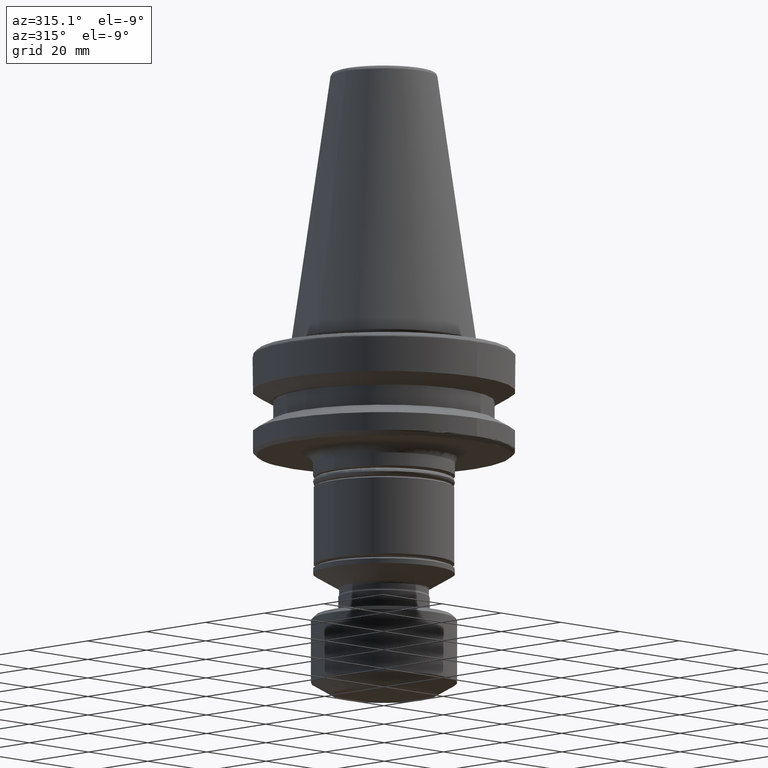
[diagram: clean part render]
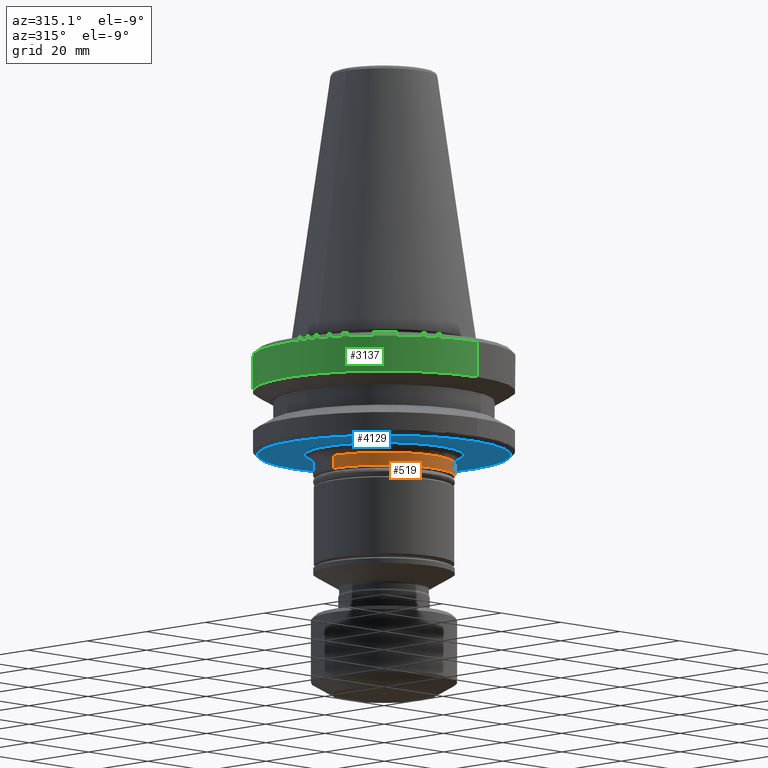
[diagram: same view with three faces highlighted in distinct colors, each labeled with its STEP entity id]
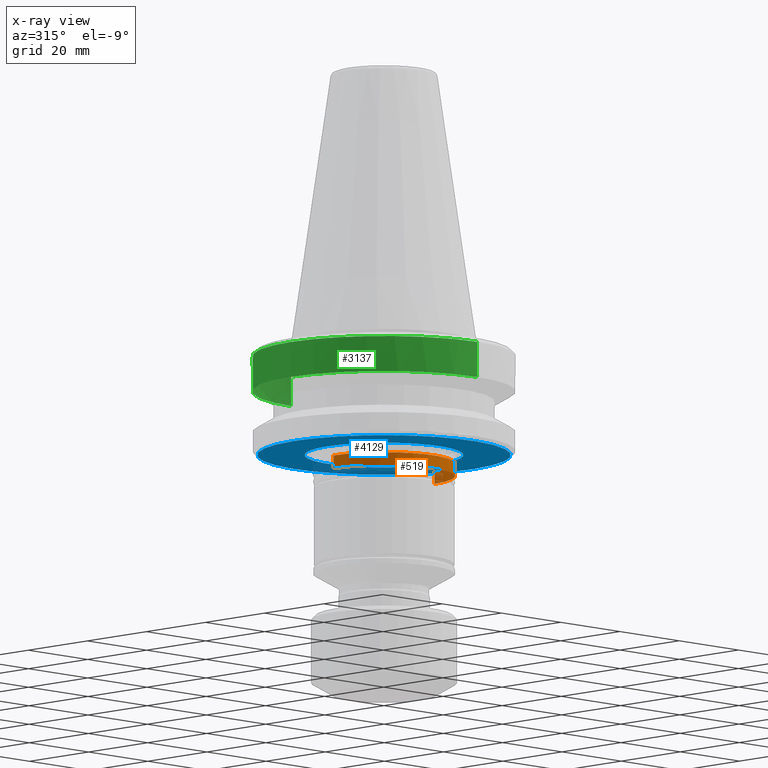
[diagram: x-ray of the same camera — body ghosted, the three highlighted faces saturated]
A machine part, auxiliary view with three faces highlighted in distinct colors.
The next image is the same camera in x-ray (body ghosted, the three faces saturated) — at least one of them is partly hidden behind the body in this view.
Their STEP definitions:

[orange] entity #519 — the highlighted cylindrical surface (partial cylindrical patch) has radius 17 mm, axis along (0, -0, 1).
#160 = DIRECTION ( 'NONE',  ( -0.0000000000000000000, -0.0000000000000000000, -1.000000000000000000 ) ) ;
#350 = EDGE_CURVE ( 'NONE', #4228, #740, #1258, .T. ) ;
#378 = CARTESIAN_POINT ( 'NONE',  ( 17.00000000000000000, 0.0000000000000000000, -32.10000000000000100 ) ) ;
#417 = EDGE_CURVE ( 'NONE', #4228, #1558, #2829, .T. ) ;
#519 = ADVANCED_FACE ( 'NONE', ( #3510 ), #2509, .T. ) ;
#680 = CARTESIAN_POINT ( 'NONE',  ( -17.00000000000000000, 2.081899558550500300E-015, -32.10000000000000100 ) ) ;
#740 = VERTEX_POINT ( 'NONE', #3626 ) ;
#847 = ORIENTED_EDGE ( 'NONE', *, *, #350, .F. ) ;
#901 = CARTESIAN_POINT ( 'NONE',  ( 16.99999999976114000, -1.144868762464558800E-009, -28.99999999902229000 ) ) ;
#923 = CIRCLE ( 'NONE', #2693, 16.99999999968151700 ) ;
#970 = ORIENTED_EDGE ( 'NONE', *, *, #1050, .T. ) ;
#1050 = EDGE_CURVE ( 'NONE', #1558, #3035, #923, .T. ) ;
#1258 = CIRCLE ( 'NONE', #2719, 17.00000000000000000 ) ;
#1476 = CARTESIAN_POINT ( 'NONE',  ( 0.0000000000000000000, 0.0000000000000000000, -32.10000000000000100 ) ) ;
#1558 = VERTEX_POINT ( 'NONE', #901 ) ;
#1690 = ORIENTED_EDGE ( 'NONE', *, *, #2159, .F. ) ;
#1761 = DIRECTION ( 'NONE',  ( -0.0000000000000000000, -2.040851148203040100E-016, -1.000000000000000000 ) ) ;
#1830 = AXIS2_PLACEMENT_3D ( 'NONE', #1476, #2147, #3164 ) ;
#1852 = LINE ( 'NONE', #680, #2745 ) ;
#1932 = VECTOR ( 'NONE', #2420, 1000.000000000000000 ) ;
#2079 = CARTESIAN_POINT ( 'NONE',  ( 17.00000000000000000, 0.0000000000000000000, -32.10000000000000100 ) ) ;
#2093 = CARTESIAN_POINT ( 'NONE',  ( -16.99999999976113700, -1.743379142380315100E-009, -28.99999999916196100 ) ) ;
#2147 = DIRECTION ( 'NONE',  ( 0.0000000000000000000, -0.0000000000000000000, 1.000000000000000000 ) ) ;
#2159 = EDGE_CURVE ( 'NONE', #740, #3035, #1852, .T. ) ;
#2268 = DIRECTION ( 'NONE',  ( 1.000000000000000000, 0.0000000000000000000, 0.0000000000000000000 ) ) ;
#2311 = ORIENTED_EDGE ( 'NONE', *, *, #417, .T. ) ;
#2420 = DIRECTION ( 'NONE',  ( 0.0000000000000000000, -0.0000000000000000000, 1.000000000000000000 ) ) ;
#2509 = CYLINDRICAL_SURFACE ( 'NONE', #1830, 17.00000000000000000 ) ;
#2689 = DIRECTION ( 'NONE',  ( 0.0000000000000000000, -0.0000000000000000000, 1.000000000000000000 ) ) ;
#2693 = AXIS2_PLACEMENT_3D ( 'NONE', #3756, #1761, #4074 ) ;
#2719 = AXIS2_PLACEMENT_3D ( 'NONE', #4157, #160, #2268 ) ;
#2745 = VECTOR ( 'NONE', #2689, 1000.000000000000000 ) ;
#2829 = LINE ( 'NONE', #2079, #1932 ) ;
#2980 = EDGE_LOOP ( 'NONE', ( #1690, #847, #2311, #970 ) ) ;
#3035 = VERTEX_POINT ( 'NONE', #2093 ) ;
#3164 = DIRECTION ( 'NONE',  ( 1.000000000000000000, 0.0000000000000000000, 0.0000000000000000000 ) ) ;
#3510 = FACE_OUTER_BOUND ( 'NONE', #2980, .T. ) ;
#3626 = CARTESIAN_POINT ( 'NONE',  ( -17.00000000000000000, 2.081899558550500700E-015, -32.10000000000000100 ) ) ;
#3756 = CARTESIAN_POINT ( 'NONE',  ( 0.0000000000000000000, 0.0000000000000000000, -28.99999999888261800 ) ) ;
#4074 = DIRECTION ( 'NONE',  ( 0.0000000000000000000, 1.000000000000000000, -2.040851148246242400E-016 ) ) ;
#4157 = CARTESIAN_POINT ( 'NONE',  ( 0.0000000000000000000, 0.0000000000000000000, -32.10000000000000100 ) ) ;
#4228 = VERTEX_POINT ( 'NONE', #378 ) ;

[blue] entity #4129 — the highlighted planar face has unit normal (0, 0, -1).
#3 = CARTESIAN_POINT ( 'NONE',  ( 18.82787342763041100, -2.551740460006809700, -27.00000000000000400 ) ) ;
#5 = CARTESIAN_POINT ( 'NONE',  ( -7.314865708564519200, -29.43924996358096300, -27.00000000000001100 ) ) ;
#7 = CARTESIAN_POINT ( 'NONE',  ( 7.495861537186623700, 17.46067113253871000, -27.00000000000000700 ) ) ;
#8 = CARTESIAN_POINT ( 'NONE',  ( -26.02943172749524700, 15.57707268833013000, -27.00000000000000400 ) ) ;
#19 = CARTESIAN_POINT ( 'NONE',  ( -12.93609967293618400, -13.91790713444788900, -26.99999999999999600 ) ) ;
#22 = CARTESIAN_POINT ( 'NONE',  ( -14.00798787767798000, -26.90636775183848800, -27.00000000000000000 ) ) ;
#25 = CARTESIAN_POINT ( 'NONE',  ( 2.755059189168146600, 18.80021988463354900, -26.99999999999999600 ) ) ;
#26 = CARTESIAN_POINT ( 'NONE',  ( -23.47453924242032400, 19.22467896250837100, -27.00000000000000000 ) ) ;
#39 = CARTESIAN_POINT ( 'NONE',  ( -10.05590705715107400, -16.12809108847860500, -26.99999999999999600 ) ) ;
#45 = CARTESIAN_POINT ( 'NONE',  ( -19.19134097740215600, -23.49476566301646200, -27.00000000000000000 ) ) ;
#47 = CARTESIAN_POINT ( 'NONE',  ( -4.486358328571229800, 18.46299426659598100, -27.00000000000000000 ) ) ;
#48 = CARTESIAN_POINT ( 'NONE',  ( -19.99695510745974400, 22.80994345807240700, -26.99999999999999600 ) ) ;
#53 = CARTESIAN_POINT ( 'NONE',  ( -5.976684999517479100, -18.04277866453826500, -26.99999999999999300 ) ) ;
#56 = CARTESIAN_POINT ( 'NONE',  ( -22.25632787284823900, -20.61134462703051200, -27.00000000000000400 ) ) ;
#58 = CARTESIAN_POINT ( 'NONE',  ( -14.72570799567473900, 26.52097213264877200, -26.99999999999999600 ) ) ;
#66 = CARTESIAN_POINT ( 'NONE',  ( 0.9881079703280889500, -18.98153755160402800, -27.00000000000000400 ) ) ;
#69 = CARTESIAN_POINT ( 'NONE',  ( -25.81104396034933000, -15.93634838797977700, -27.00000000000001100 ) ) ;
#73 = CARTESIAN_POINT ( 'NONE',  ( -8.509475416772762200, 29.11919875568423100, -27.00000000000000000 ) ) ;
#81 = CARTESIAN_POINT ( 'NONE',  ( 6.566667162542396200, -17.82961824058849500, -26.99999999999999600 ) ) ;
#87 = CARTESIAN_POINT ( 'NONE',  ( -27.64383232674867200, -12.51919696692797500, -27.00000000000000400 ) ) ;
#89 = CARTESIAN_POINT ( 'NONE',  ( 0.6317819115492843100, 30.33432603010910400, -27.00000000000001100 ) ) ;
#98 = CARTESIAN_POINT ( 'NONE',  ( 10.28528676935084000, -15.97724112889807900, -27.00000000000000700 ) ) ;
#104 = CARTESIAN_POINT ( 'NONE',  ( -29.97105914675228500, -4.687334143326726400, -26.99999999999999300 ) ) ;
#106 = CARTESIAN_POINT ( 'NONE',  ( 8.065230255933419900, 29.24900761300012800, -26.99999999999998600 ) ) ;
#118 = CARTESIAN_POINT ( 'NONE',  ( 14.21033856242435600, 26.80004120175451700, -27.00000000000000000 ) ) ;
#130 = CARTESIAN_POINT ( 'NONE',  ( 19.75880468304401900, 23.01671043274103600, -26.99999999999999600 ) ) ;
#145 = CARTESIAN_POINT ( 'NONE',  ( 23.14263354253246200, 19.62296503532528600, -27.00000000000000000 ) ) ;
#157 = CARTESIAN_POINT ( 'NONE',  ( 25.89161949666424800, 15.80492250809533200, -26.99999999999999600 ) ) ;
#163 = B_SPLINE_CURVE_WITH_KNOTS ( 'NONE', 3,
 ( #1279, #299, #1294, #3629, #1621, #3939, #1964, #4272, #2283, #312, #2635, #628, #2983, #980, #3312, #1303, #3643, #1639, #3953, #1977, #4293, #2300, #326, #2646, #648, #2997, #995, #3330, #1316, #3651, #1657, #3968, #1989, #4306, #2322, #342, #2664, #663, #3020, #1006, #3343, #1336, #3667, #1669, #3983, #2006, #19, #2337, #365, #2677, #675, #3033, #1027, #3355, #1349, #3688, #1683, #3997, #2023, #39, #2352, #376, #2701, #690, #3047, #1042, #3375, #1361, #3702, #1704, #4016, #2035, #53, #2369, #392, #2713, #711, #3060, #1054, #3390, #1378, #3715, #1719, #4033, #2046, #66, #2387, #409, #2728, #723, #3080, #1066, #3404, #1394, #3731, #1727, #4042, #2064, #81, #2400, #425, #2746, #737, #3091, #1086, #3419, #1406, #3747, #1749, #4056, #2077, #98, #2418, #436, #2760, #754, #3102, #1098, #3440, #1419, #3887, #1608, #3931, #1952, #4261, #2271, #303, #2619, #618, #2970, #968, #3301, #1295, #3632, #1624, #3942, #1968, #4276, #2287, #313, #2638, #631, #2986, #981, #3316, #1305, #3645, #1643, #3955, #1980, #4296, #2304, #330, #2649, #652, #3000, #997, #3332, #1321, #3653, #1659, #3973, #1992, #3, #2323, #346, #2666, #665 ),
 .UNSPECIFIED., .F., .F.,
 ( 4, 1, 1, 1, 1, 1, 2, 2, 1, 1, 1, 1, 1, 2, 2, 1, 1, 1, 1, 1, 2, 2, 1, 1, 1, 1, 1, 2, 2, 1, 1, 1, 2, 2, 1, 1, 1, 2, 2, 1, 1, 1, 2, 2, 1, 1, 1, 2, 2, 1, 1, 2, 2, 1, 1, 2, 2, 1, 2, 2, 2, 1, 2, 2, 1, 1, 2, 2, 1, 1, 1, 2, 2, 1, 1, 1, 2, 2, 1, 1, 1, 2, 2, 1, 1, 1, 2, 2, 1, 1, 1, 2, 2, 1, 1, 1, 1, 2, 2, 1, 1, 1, 1, 1, 2, 2, 1, 1, 1, 1, 1, 2, 2, 1, 1, 1, 1, 1, 2, 2, 4 ),
 ( 0.0000000000000000000, 0.03124999999999462900, 0.04687499999999195100, 0.05468749999999060500, 0.05859374999998992500, 0.06054687499998956400, 0.06152343749998937000, 0.06249999999998917500, 0.09374999999998330500, 0.1093749999999804500, 0.1171874999999790600, 0.1210937499999783900, 0.1230468749999780900, 0.1240234374999779600, 0.1249999999999778400, 0.1562499999999736900, 0.1718749999999716100, 0.1796874999999705500, 0.1835937499999700000, 0.1855468749999697700, 0.1865234374999697200, 0.1874999999999696600, 0.2187499999999664200, 0.2343749999999648600, 0.2421874999999641100, 0.2460937499999637800, 0.2480468749999636100, 0.2490234374999635300, 0.2499999999999634700, 0.2656249999999630300, 0.2734374999999628100, 0.2773437499999627500, 0.2792968749999627500, 0.2812499999999627500, 0.2968749999999628600, 0.3046874999999629200, 0.3085937499999629200, 0.3105468749999629200, 0.3124999999999628600, 0.3281249999999630300, 0.3359374999999630900, 0.3398437499999630900, 0.3417968749999630900, 0.3437499999999630900, 0.3593749999999628600, 0.3671874999999628100, 0.3710937499999628100, 0.3730468749999627500, 0.3749999999999627000, 0.3906249999999622000, 0.3984374999999618600, 0.4023437499999617500, 0.4062499999999616400, 0.4218749999999610900, 0.4296874999999608100, 0.4335937499999607000, 0.4374999999999605300, 0.4531249999999600900, 0.4609374999999598700, 0.4687499999999596400, 0.4999999999999588100, 0.5156249999999583700, 0.5234374999999581400, 0.5312499999999579200, 0.5468749999999573700, 0.5546874999999571500, 0.5585937499999570300, 0.5624999999999569200, 0.5781249999999564800, 0.5859374999999562600, 0.5898437499999561500, 0.5917968749999561500, 0.5937499999999561500, 0.6093749999999555900, 0.6171874999999553700, 0.6210937499999552600, 0.6230468749999552600, 0.6249999999999551500, 0.6406249999999551500, 0.6484374999999551500, 0.6523437499999551500, 0.6542968749999551500, 0.6562499999999551500, 0.6718749999999550400, 0.6796874999999550400, 0.6835937499999550400, 0.6855468749999550400, 0.6874999999999550400, 0.7031249999999550400, 0.7109374999999549200, 0.7148437499999549200, 0.7167968749999549200, 0.7187499999999549200, 0.7343749999999550400, 0.7421874999999551500, 0.7460937499999552600, 0.7480468749999552600, 0.7490234374999553700, 0.7499999999999553700, 0.7812499999999579200, 0.7968749999999590300, 0.8046874999999595900, 0.8085937499999599200, 0.8105468749999600300, 0.8115234374999602500, 0.8124999999999603700, 0.8437499999999653600, 0.8593749999999678000, 0.8671874999999690200, 0.8710937499999696900, 0.8730468749999700200, 0.8740234374999701400, 0.8749999999999702500, 0.9062499999999775700, 0.9218749999999812400, 0.9296874999999830100, 0.9335937499999839000, 0.9355468749999843500, 0.9365234374999845700, 0.9374999999999849000, 1.000000000000000000 ),
 .UNSPECIFIED. ) ;
#168 = CARTESIAN_POINT ( 'NONE',  ( 28.66941225224502800, 9.928030281009007800, -27.00000000000000400 ) ) ;
#186 = CARTESIAN_POINT ( 'NONE',  ( 30.04331833585343100, 4.192089910118646400, -26.99999999999998900 ) ) ;
#189 = CARTESIAN_POINT ( 'NONE',  ( -8.857657997251424200, 16.80904707669810700, -27.00000000000000400 ) ) ;
#205 = CARTESIAN_POINT ( 'NONE',  ( -12.35913943644406900, 14.43099327920279900, -26.99999999999999300 ) ) ;
#218 = CARTESIAN_POINT ( 'NONE',  ( -15.02800571688344200, 11.62628612701970700, -26.99999999999999300 ) ) ;
#232 = CARTESIAN_POINT ( 'NONE',  ( -17.07127253458163500, 8.340978395373113600, -27.00000000000000400 ) ) ;
#233 = CARTESIAN_POINT ( 'NONE',  ( 30.06866015639783300, -4.005796829338464700, -27.00000000000000700 ) ) ;
#246 = CARTESIAN_POINT ( 'NONE',  ( -18.77246363395402500, 2.935975310833166300, -27.00000000000000000 ) ) ;
#248 = CARTESIAN_POINT ( 'NONE',  ( 28.46761302130532900, -10.53892102966855200, -26.99999999999999300 ) ) ;
#259 = CARTESIAN_POINT ( 'NONE',  ( 26.02943172749522900, -15.57707268833224400, -27.00000000000000000 ) ) ;
#269 = CARTESIAN_POINT ( 'NONE',  ( 23.47453924233295600, -19.22467896260266700, -27.00000000000000000 ) ) ;
#272 = CARTESIAN_POINT ( 'NONE',  ( 18.87783462260351200, 2.155679185486616000, -27.00000000000000000 ) ) ;
#284 = CARTESIAN_POINT ( 'NONE',  ( 19.99695510745970100, -22.80994345807246800, -26.99999999999999600 ) ) ;
#289 = CARTESIAN_POINT ( 'NONE',  ( 18.24834978396614100, 5.291306758436402200, -26.99999999999999600 ) ) ;
#299 = CARTESIAN_POINT ( 'NONE',  ( -18.99999999870138000, -0.4221368737846188400, -26.99999999999999600 ) ) ;
#301 = EDGE_LOOP ( 'NONE', ( #3061, #1780 ) ) ;
#303 = CARTESIAN_POINT ( 'NONE',  ( 13.75067789924464300, -13.11226443721732000, -27.00000000000000000 ) ) ;
#305 = CARTESIAN_POINT ( 'NONE',  ( 14.72570799571517100, -26.52097213262342000, -26.99999999999999600 ) ) ;
#307 = CARTESIAN_POINT ( 'NONE',  ( 15.81210197550436400, 10.54231729813940900, -26.99999999999999300 ) ) ;
#312 = CARTESIAN_POINT ( 'NONE',  ( -18.83384010416438100, -2.507324194782564400, -27.00000000000000400 ) ) ;
#313 = CARTESIAN_POINT ( 'NONE',  ( 16.06800883196779800, -10.17154197523839400, -26.99999999999999300 ) ) ;
#315 = CARTESIAN_POINT ( 'NONE',  ( 8.509475416622720400, -29.11919875572946700, -27.00000000000000000 ) ) ;
#318 = CARTESIAN_POINT ( 'NONE',  ( 13.98293103150351200, 12.86387973502792900, -26.99999999999999600 ) ) ;
#319 = CARTESIAN_POINT ( 'NONE',  ( -29.96460452612253200, 4.782885916290593900, -26.99999999999998600 ) ) ;
#326 = CARTESIAN_POINT ( 'NONE',  ( -17.28070516621820100, -7.899981536421388600, -26.99999999999999600 ) ) ;
#330 = CARTESIAN_POINT ( 'NONE',  ( 18.20668136008871200, -5.433112444334111200, -27.00000000000000400 ) ) ;
#332 = CARTESIAN_POINT ( 'NONE',  ( -0.6317819115153936500, -30.33432603010910700, -27.00000000000001100 ) ) ;
#335 = CARTESIAN_POINT ( 'NONE',  ( 10.89125999504555300, 15.56863370260211000, -27.00000000000000000 ) ) ;
#336 = CARTESIAN_POINT ( 'NONE',  ( -27.58935865968132000, 12.61273155093368500, -27.00000000000000000 ) ) ;
#342 = CARTESIAN_POINT ( 'NONE',  ( -15.22260074624581300, -11.36981763431371600, -27.00000000000000400 ) ) ;
#346 = CARTESIAN_POINT ( 'NONE',  ( 18.94395280106508400, -1.685323045435310300, -27.00000000000000000 ) ) ;
#349 = CARTESIAN_POINT ( 'NONE',  ( -8.065230255944108300, -29.24900761299397100, -27.00000000000000700 ) ) ;
#355 = CARTESIAN_POINT ( 'NONE',  ( 7.059012966115526300, 17.64027192893974700, -27.00000000000000400 ) ) ;
#356 = CARTESIAN_POINT ( 'NONE',  ( -25.95401150601936600, 15.70225232312717800, -27.00000000000000400 ) ) ;
#365 = CARTESIAN_POINT ( 'NONE',  ( -12.62081010798650900, -14.20270700424155300, -27.00000000000000000 ) ) ;
#370 = CARTESIAN_POINT ( 'NONE',  ( -14.21033856243431600, -26.80004120174884000, -27.00000000000000400 ) ) ;
#371 = CARTESIAN_POINT ( 'NONE',  ( 1.580618868035748000, 18.95069043107731600, -26.99999999999999600 ) ) ;
#372 = CARTESIAN_POINT ( 'NONE',  ( -22.58410214248687700, 20.25236861690798300, -27.00000000000000700 ) ) ;
#376 = CARTESIAN_POINT ( 'NONE',  ( -9.223538256998027800, -16.61147474711575400, -26.99999999999999600 ) ) ;
#379 = CARTESIAN_POINT ( 'NONE',  ( -19.75880468302736400, -23.01671043275637600, -27.00000000000000400 ) ) ;
#384 = CARTESIAN_POINT ( 'NONE',  ( -5.051620366883540200, 18.32023476631966800, -26.99999999999999600 ) ) ;
#385 = CARTESIAN_POINT ( 'NONE',  ( -19.51979269849415000, 23.22646600561864400, -27.00000000000000400 ) ) ;
#392 = CARTESIAN_POINT ( 'NONE',  ( -5.050812194354394400, -18.31662549618333100, -27.00000000000001100 ) ) ;
#397 = CARTESIAN_POINT ( 'NONE',  ( -23.14263354265071700, -19.62296503517466900, -26.99999999999998600 ) ) ;
#400 = CARTESIAN_POINT ( 'NONE',  ( -14.40417093812758900, 26.69636274030679200, -27.00000000000000400 ) ) ;
#409 = CARTESIAN_POINT ( 'NONE',  ( 1.972653206852868200, -18.89835632397532800, -26.99999999999999300 ) ) ;
#415 = CARTESIAN_POINT ( 'NONE',  ( -25.89161949666513600, -15.80492250809369100, -27.00000000000000000 ) ) ;
#419 = CARTESIAN_POINT ( 'NONE',  ( -7.765785046617814700, 29.32352643385703700, -27.00000000000000000 ) ) ;
#425 = CARTESIAN_POINT ( 'NONE',  ( 6.792797072109534500, -17.74429987204685600, -26.99999999999999600 ) ) ;
#428 = CARTESIAN_POINT ( 'NONE',  ( -28.66941225222695900, -9.928030281022325100, -26.99999999999999300 ) ) ;
#429 = CARTESIAN_POINT ( 'NONE',  ( 2.678387280332209300, 30.21875626471112900, -26.99999999999999600 ) ) ;
#436 = CARTESIAN_POINT ( 'NONE',  ( 10.66709582109774200, -15.72307606274492600, -27.00000000000000000 ) ) ;
#440 = CARTESIAN_POINT ( 'NONE',  ( -30.04331833584984000, -4.192089910138035300, -27.00000000000000000 ) ) ;
#443 = CARTESIAN_POINT ( 'NONE',  ( 9.976580335075116300, 28.64972546898872700, -27.00000000000000400 ) ) ;
#446 = VERTEX_POINT ( 'NONE', #2089 ) ;
#457 = CARTESIAN_POINT ( 'NONE',  ( 15.55448809836374300, 26.05439568656606800, -26.99999999999999300 ) ) ;
#473 = CARTESIAN_POINT ( 'NONE',  ( 19.89252192534621200, 22.90107864450177300, -27.00000000000000400 ) ) ;
#483 = CARTESIAN_POINT ( 'NONE',  ( 23.99290541593989400, 18.56180435316529300, -26.99999999999999600 ) ) ;
#494 = CARTESIAN_POINT ( 'NONE',  ( 26.16641375507222700, 15.35279778015265300, -26.99999999999999300 ) ) ;
#509 = CARTESIAN_POINT ( 'NONE',  ( 29.01363841858409000, 8.854384036413089000, -26.99999999999999300 ) ) ;
#520 = CARTESIAN_POINT ( 'NONE',  ( 30.05950157680371500, 4.073955391500558000, -26.99999999999999600 ) ) ;
#521 = CARTESIAN_POINT ( 'NONE',  ( -9.264987041239395500, 16.59201824156949100, -27.00000000000000400 ) ) ;
#530 = CARTESIAN_POINT ( 'NONE',  ( -12.46114130945123000, 14.34300238550738800, -26.99999999999999600 ) ) ;
#545 = CARTESIAN_POINT ( 'NONE',  ( -15.15113096116542700, 11.46488477759257000, -26.99999999999999300 ) ) ;
#561 = CARTESIAN_POINT ( 'NONE',  ( -17.63705260362359800, 7.102513206462963200, -27.00000000000000000 ) ) ;
#562 = CARTESIAN_POINT ( 'NONE',  ( 29.96460452613175100, -4.782885916241348800, -27.00000000000000400 ) ) ;
#572 = CARTESIAN_POINT ( 'NONE',  ( -18.81773072834685900, 2.625742850246128000, -26.99999999999999600 ) ) ;
#573 = CARTESIAN_POINT ( 'NONE',  ( 27.58935865969756000, -12.61273155089334500, -26.99999999999999600 ) ) ;
#584 = CARTESIAN_POINT ( 'NONE',  ( 25.95401150601937300, -15.70225232312781900, -26.99999999999999600 ) ) ;
#599 = CARTESIAN_POINT ( 'NONE',  ( 22.58410214244866100, -20.25236861694924100, -27.00000000000000400 ) ) ;
#601 = CARTESIAN_POINT ( 'NONE',  ( 18.84392716270539500, 2.430549279836677500, -27.00000000000000400 ) ) ;
#609 = CARTESIAN_POINT ( 'NONE',  ( 19.51979269851121400, -23.22646600560350200, -26.99999999999999600 ) ) ;
#610 = CARTESIAN_POINT ( 'NONE',  ( 18.08913933228043900, 5.837288427540270800, -27.00000000000000700 ) ) ;
#618 = CARTESIAN_POINT ( 'NONE',  ( 13.89627315902758500, -12.95744331846185200, -27.00000000000000000 ) ) ;
#620 = CARTESIAN_POINT ( 'NONE',  ( 14.40417093814039300, -26.69636274029878100, -26.99999999999999600 ) ) ;
#623 = CARTESIAN_POINT ( 'NONE',  ( 15.35703561195156100, 11.18801348112124400, -27.00000000000000700 ) ) ;
#628 = CARTESIAN_POINT ( 'NONE',  ( -18.64690099608797900, -3.700641545233175600, -27.00000000000000400 ) ) ;
#631 = CARTESIAN_POINT ( 'NONE',  ( 16.84197296443884500, -8.797100175749758200, -26.99999999999999600 ) ) ;
#633 = CARTESIAN_POINT ( 'NONE',  ( 7.765785046565133200, -29.32352643387293500, -27.00000000000000400 ) ) ;
#639 = CARTESIAN_POINT ( 'NONE',  ( 13.36782249502759800, 13.50941152398221400, -26.99999999999999300 ) ) ;
#640 = CARTESIAN_POINT ( 'NONE',  ( -29.47033861248063100, 7.206134666320332700, -26.99999999999999600 ) ) ;
#648 = CARTESIAN_POINT ( 'NONE',  ( -17.13004068470947400, -8.219711983950169600, -27.00000000000000400 ) ) ;
#652 = CARTESIAN_POINT ( 'NONE',  ( 18.23054275304248900, -5.352342203467303600, -27.00000000000001100 ) ) ;
#654 = CARTESIAN_POINT ( 'NONE',  ( -2.678387280287725800, -30.21875626471113600, -27.00000000000000400 ) ) ;
#657 = CARTESIAN_POINT ( 'NONE',  ( 10.51682981059291000, 15.82818159957381700, -27.00000000000000400 ) ) ;
#658 = CARTESIAN_POINT ( 'NONE',  ( -27.34883660898578800, 13.12314260328381900, -27.00000000000000400 ) ) ;
#663 = CARTESIAN_POINT ( 'NONE',  ( -15.00523766573508200, -11.65969791724253900, -27.00000000000000000 ) ) ;
#665 = CARTESIAN_POINT ( 'NONE',  ( 19.00000000288974200, 0.0000000000000000000, -26.99999999980891000 ) ) ;
#667 = CARTESIAN_POINT ( 'NONE',  ( -9.976580335089162000, -28.64972546898062300, -27.00000000000000000 ) ) ;
#669 = CARTESIAN_POINT ( 'NONE',  ( 6.522692070853018700, 17.84949160224891400, -27.00000000000000000 ) ) ;
#670 = CARTESIAN_POINT ( 'NONE',  ( -25.66765165100831700, 16.17361856578982000, -26.99999999999999600 ) ) ;
#675 = CARTESIAN_POINT ( 'NONE',  ( -12.52650221615078000, -14.28596007415518100, -26.99999999999999300 ) ) ;
#678 = CARTESIAN_POINT ( 'NONE',  ( -15.55448809822459200, -26.05439568664580500, -27.00000000000000000 ) ) ;
#681 = CARTESIAN_POINT ( 'NONE',  ( -0.3956503577012525600, 19.00001145209794000, -27.00000000000000000 ) ) ;
#682 = CARTESIAN_POINT ( 'NONE',  ( -22.36612433064010500, 20.49214719186557300, -26.99999999999999600 ) ) ;
#690 = CARTESIAN_POINT ( 'NONE',  ( -9.022114061999330300, -16.72134859768298300, -26.99999999999999600 ) ) ;
#696 = CARTESIAN_POINT ( 'NONE',  ( -19.89252192534121000, -22.90107864450636300, -26.99999999999999600 ) ) ;
#701 = CARTESIAN_POINT ( 'NONE',  ( -6.248781001033378900, 17.94487876486473600, -27.00000000000000000 ) ) ;
#702 = CARTESIAN_POINT ( 'NONE',  ( -18.07767848222927400, 24.36204342592143800, -27.00000000000000000 ) ) ;
#711 = CARTESIAN_POINT ( 'NONE',  ( -4.772048338358859900, -18.39122293168850000, -27.00000000000000000 ) ) ;
#716 = CARTESIAN_POINT ( 'NONE',  ( -23.99290541599164300, -18.56180435309940400, -26.99999999999999300 ) ) ;
#718 = CARTESIAN_POINT ( 'NONE',  ( -13.74248248555995200, 27.04957753093912500, -27.00000000000000000 ) ) ;
#723 = CARTESIAN_POINT ( 'NONE',  ( 2.755288336480504500, -18.80326934213314500, -27.00000000000000000 ) ) ;
#729 = CARTESIAN_POINT ( 'NONE',  ( -26.16641375509273400, -15.35279778012047000, -26.99999999999999600 ) ) ;
#731 = CARTESIAN_POINT ( 'NONE',  ( -7.542857310445056000, 29.38166094418224400, -27.00000000000000000 ) ) ;
#737 = CARTESIAN_POINT ( 'NONE',  ( 7.235286297040502700, -17.57253164344573500, -27.00000000000000000 ) ) ;
#743 = CARTESIAN_POINT ( 'NONE',  ( -29.01363841857845900, -8.854384036417274100, -26.99999999999999300 ) ) ;
#745 = CARTESIAN_POINT ( 'NONE',  ( 3.463349227945398600, 30.13636985357444300, -26.99999999999998900 ) ) ;
#754 = CARTESIAN_POINT ( 'NONE',  ( 10.78211383329210800, -15.64442189752150000, -26.99999999999999600 ) ) ;
#756 = EDGE_LOOP ( 'NONE', ( #4300, #1331 ) ) ;
#761 = CARTESIAN_POINT ( 'NONE',  ( -30.05950157680266700, -4.073955391506227200, -26.99999999999999600 ) ) ;
#765 = CARTESIAN_POINT ( 'NONE',  ( 10.70073321115620700, 28.38434312204667300, -27.00000000000000000 ) ) ;
#779 = CARTESIAN_POINT ( 'NONE',  ( 16.84852800073556600, 25.22569241737505800, -26.99999999999999600 ) ) ;
#791 = CARTESIAN_POINT ( 'NONE',  ( 20.35475882438630200, 22.49776777161695700, -27.00000000000000400 ) ) ;
#808 = CARTESIAN_POINT ( 'NONE',  ( 24.18944583505750900, 18.30416128124829500, -27.00000000000000000 ) ) ;
#825 = CARTESIAN_POINT ( 'NONE',  ( 26.89983123154831200, 14.02375570373720300, -27.00000000000000000 ) ) ;
#835 = CARTESIAN_POINT ( 'NONE',  ( 29.09446477738679000, 8.583937720210116100, -26.99999999999999600 ) ) ;
#848 = CARTESIAN_POINT ( 'NONE',  ( 30.06447116071621300, 4.037117130667589000, -26.99999999999999600 ) ) ;
#850 = CARTESIAN_POINT ( 'NONE',  ( -10.28528676940471300, 15.97724112886525600, -27.00000000000000000 ) ) ;
#869 = CARTESIAN_POINT ( 'NONE',  ( -13.12390038829996200, 13.74649567381413300, -26.99999999999999300 ) ) ;
#883 = CARTESIAN_POINT ( 'NONE',  ( -15.18869326016954000, 11.41507479160196500, -26.99999999999999300 ) ) ;
#894 = CARTESIAN_POINT ( 'NONE',  ( -18.10323298528549400, 5.771085482752117600, -27.00000000000000000 ) ) ;
#895 = CARTESIAN_POINT ( 'NONE',  ( 29.47033861249271400, -7.206134666255702600, -26.99999999999999300 ) ) ;
#908 = CARTESIAN_POINT ( 'NONE',  ( -18.82787342763045800, 2.551740460004907200, -26.99999999999999300 ) ) ;
#909 = CARTESIAN_POINT ( 'NONE',  ( 27.34883660899029000, -13.12314260327264900, -27.00000000000000700 ) ) ;
#915 = DIRECTION ( 'NONE',  ( -1.000000000000000000, 0.0000000000000000000, 0.0000000000000000000 ) ) ;
#922 = CARTESIAN_POINT ( 'NONE',  ( -30.33431456895414200, 0.0000000000000000000, -27.00000000001086800 ) ) ;
#929 = CARTESIAN_POINT ( 'NONE',  ( 25.66765165095275600, -16.17361856587599400, -26.99999999999999600 ) ) ;
#941 = CARTESIAN_POINT ( 'NONE',  ( 22.36612433062813200, -20.49214719187852300, -27.00000000000000400 ) ) ;
#944 = CARTESIAN_POINT ( 'NONE',  ( 18.83534767224691800, 2.495962329954151600, -26.99999999999999600 ) ) ;
#950 = CARTESIAN_POINT ( 'NONE',  ( 18.07767848225170200, -24.36204342590156500, -27.00000000000000000 ) ) ;
#955 = CARTESIAN_POINT ( 'NONE',  ( 17.47341859502031600, 7.470551548047423800, -26.99999999999999300 ) ) ;
#968 = CARTESIAN_POINT ( 'NONE',  ( 14.17441763797580200, -12.65668151226580600, -27.00000000000000700 ) ) ;
#971 = CARTESIAN_POINT ( 'NONE',  ( 13.74248248552805800, -27.04957753096127200, -26.99999999999999300 ) ) ;
#973 = CARTESIAN_POINT ( 'NONE',  ( 15.24512988426433100, 11.33959180210313800, -27.00000000000000700 ) ) ;
#974 = CARTESIAN_POINT ( 'NONE',  ( -30.30075891712978400, 1.682853304890324300, -27.00000000000000400 ) ) ;
#980 = CARTESIAN_POINT ( 'NONE',  ( -18.35328467181732700, -4.917548374991579200, -26.99999999999999300 ) ) ;
#981 = CARTESIAN_POINT ( 'NONE',  ( 17.02048087885902200, -8.444271607336872900, -27.00000000000000000 ) ) ;
#983 = CARTESIAN_POINT ( 'NONE',  ( 7.542857310446568600, -29.38166094418255300, -27.00000000000000000 ) ) ;
#985 = CARTESIAN_POINT ( 'NONE',  ( 12.71602844934681500, 14.11790459500839000, -27.00000000000000000 ) ) ;
#986 = CARTESIAN_POINT ( 'NONE',  ( -29.21290319817081000, 8.172701034987884600, -27.00000000000000000 ) ) ;
#995 = CARTESIAN_POINT ( 'NONE',  ( -17.09339680079163400, -8.295543533975758200, -27.00000000000000400 ) ) ;
#997 = CARTESIAN_POINT ( 'NONE',  ( 18.37380115641621400, -4.861299159803975200, -27.00000000000000400 ) ) ;
#999 = CARTESIAN_POINT ( 'NONE',  ( -3.463349227929517000, -30.13636985357446500, -27.00000000000000000 ) ) ;
#1000 = CARTESIAN_POINT ( 'NONE',  ( 9.503447283838941200, 16.45429523682176800, -27.00000000000000000 ) ) ;
#1001 = CARTESIAN_POINT ( 'NONE',  ( -27.29033024350886500, 13.24419357006816600, -27.00000000000000700 ) ) ;
#1006 = CARTESIAN_POINT ( 'NONE',  ( -14.33440175904801400, -12.47282072963544100, -26.99999999999999300 ) ) ;
#1012 = CARTESIAN_POINT ( 'NONE',  ( -10.70073321116115400, -28.38434312204384500, -27.00000000000000700 ) ) ;
#1017 = CARTESIAN_POINT ( 'NONE',  ( 5.330022215977877000, 18.23888128892407700, -27.00000000000000000 ) ) ;
#1018 = CARTESIAN_POINT ( 'NONE',  ( -24.77677519887875200, 17.50396970122777100, -27.00000000000000000 ) ) ;
#1027 = CARTESIAN_POINT ( 'NONE',  ( -11.81689856671096100, -14.88560492205788100, -27.00000000000000000 ) ) ;
#1034 = CARTESIAN_POINT ( 'NONE',  ( -16.84852800067468700, -25.22569241740994900, -27.00000000000000000 ) ) ;
#1037 = CARTESIAN_POINT ( 'NONE',  ( -1.579038697021397700, 18.93532703103660700, -26.99999999999999600 ) ) ;
#1038 = CARTESIAN_POINT ( 'NONE',  ( -22.30133716546319200, 20.56263888184794900, -27.00000000000000400 ) ) ;
#1042 = CARTESIAN_POINT ( 'NONE',  ( -8.607709595140995900, -16.94256655092059900, -26.99999999999998900 ) ) ;
#1044 = CARTESIAN_POINT ( 'NONE',  ( -20.35475882445958700, -22.49776777155122100, -27.00000000000000000 ) ) ;
#1047 = CARTESIAN_POINT ( 'NONE',  ( -6.702410870689152300, 17.77863823753842400, -27.00000000000000700 ) ) ;
#1048 = CARTESIAN_POINT ( 'NONE',  ( -17.47517895629247100, 24.79510947115811300, -27.00000000000000400 ) ) ;
#1054 = CARTESIAN_POINT ( 'NONE',  ( -3.722150704077646500, -18.63911082678030000, -26.99999999999999600 ) ) ;
#1057 = CARTESIAN_POINT ( 'NONE',  ( -24.18944583507373700, -18.30416128122762800, -26.99999999999999600 ) ) ;
#1060 = CARTESIAN_POINT ( 'NONE',  ( -11.96733973184792000, 27.87676735260247100, -27.00000000000000000 ) ) ;
#1066 = CARTESIAN_POINT ( 'NONE',  ( 4.008523863383761200, -18.57416904238117900, -27.00000000000000700 ) ) ;
#1073 = CARTESIAN_POINT ( 'NONE',  ( -26.89983123157522400, -14.02375570369495600, -27.00000000000000000 ) ) ;
#1076 = CARTESIAN_POINT ( 'NONE',  ( -5.942386583697240700, 29.75817487962307000, -27.00000000000000700 ) ) ;
#1086 = CARTESIAN_POINT ( 'NONE',  ( 8.353009528354837300, -17.06722654665473700, -27.00000000000000000 ) ) ;
#1092 = CARTESIAN_POINT ( 'NONE',  ( -29.09446477738533300, -8.583937720211221000, -27.00000000000001800 ) ) ;
#1094 = CARTESIAN_POINT ( 'NONE',  ( 4.399042581751678500, 30.02020546249437800, -26.99999999999999600 ) ) ;
#1098 = CARTESIAN_POINT ( 'NONE',  ( 11.53731706233572600, -15.10333107730182300, -27.00000000000000400 ) ) ;
#1101 = CARTESIAN_POINT ( 'NONE',  ( -30.06447116071621700, -4.037117130667089900, -26.99999999999999600 ) ) ;
#1104 = CARTESIAN_POINT ( 'NONE',  ( 10.91872159205925600, 28.30119732552796200, -27.00000000000000000 ) ) ;
#1120 = CARTESIAN_POINT ( 'NONE',  ( 17.15153278352014300, 25.01992883284628600, -27.00000000000000000 ) ) ;
#1135 = CARTESIAN_POINT ( 'NONE',  ( 21.62447890234269800, 21.27633189451445600, -26.99999999999998600 ) ) ;
#1147 = CARTESIAN_POINT ( 'NONE',  ( 24.24896127769003900, 18.22524170751858800, -26.99999999999998900 ) ) ;
#1157 = CARTESIAN_POINT ( 'NONE',  ( 27.17660581663622600, 13.47622412876379800, -26.99999999999999600 ) ) ;
#1171 = CARTESIAN_POINT ( 'NONE',  ( 29.11340197906530800, 8.519426238674492800, -27.00000000000000700 ) ) ;
#1173 = CARTESIAN_POINT ( 'NONE',  ( -6.792797072100579900, 17.74429987205002500, -27.00000000000000400 ) ) ;
#1189 = CARTESIAN_POINT ( 'NONE',  ( 30.33431457484531900, 1.348362406698422100, -27.00000000000001100 ) ) ;
#1190 = CARTESIAN_POINT ( 'NONE',  ( -10.66709582111666400, 15.72307606273338000, -26.99999999999999300 ) ) ;
#1201 = CARTESIAN_POINT ( 'NONE',  ( -13.75067789923501800, 13.11226443722593700, -27.00000000000001100 ) ) ;
#1211 = CARTESIAN_POINT ( 'NONE',  ( -16.06800883194653600, 10.17154197528200800, -27.00000000000000000 ) ) ;
#1212 = CARTESIAN_POINT ( 'NONE',  ( 30.30075891712979100, -1.682853304860344900, -26.99999999999999600 ) ) ;
#1230 = CARTESIAN_POINT ( 'NONE',  ( -18.20668136009352300, 5.433112444324222200, -27.00000000000000000 ) ) ;
#1232 = CARTESIAN_POINT ( 'NONE',  ( 29.21290319817458000, -8.172701034967691000, -26.99999999999999300 ) ) ;
#1243 = CARTESIAN_POINT ( 'NONE',  ( -18.94395280106507700, 1.685323045478263300, -27.00000000000000000 ) ) ;
#1244 = CARTESIAN_POINT ( 'NONE',  ( 27.29033024351018000, -13.24419357006490300, -26.99999999999999600 ) ) ;
#1256 = CARTESIAN_POINT ( 'NONE',  ( 24.77677519880581500, -17.50396970134086800, -27.00000000000000700 ) ) ;
#1269 = CARTESIAN_POINT ( 'NONE',  ( 22.30133716546322000, -20.56263888184792100, -26.99999999999999600 ) ) ;
#1271 = CARTESIAN_POINT ( 'NONE',  ( 18.76844405789257300, 2.995714258432539800, -26.99999999999999600 ) ) ;
#1279 = CARTESIAN_POINT ( 'NONE',  ( -19.00000000288974200, 0.0000000000000000000, -26.99999999980891000 ) ) ;
#1284 = CARTESIAN_POINT ( 'NONE',  ( 17.47517895629946900, -24.79510947115191400, -27.00000000000000000 ) ) ;
#1286 = CARTESIAN_POINT ( 'NONE',  ( 17.18084593186561500, 8.113358219902515600, -27.00000000000000000 ) ) ;
#1294 = CARTESIAN_POINT ( 'NONE',  ( -18.97898229958777300, -1.054005015833168400, -27.00000000000000000 ) ) ;
#1295 = CARTESIAN_POINT ( 'NONE',  ( 14.85324008999030600, -11.85021415721527700, -27.00000000000000000 ) ) ;
#1297 = CARTESIAN_POINT ( 'NONE',  ( 11.96733973180604600, -27.87676735263154600, -27.00000000000000400 ) ) ;
#1299 = CARTESIAN_POINT ( 'NONE',  ( 15.21217264478904200, 11.38376887957230100, -27.00000000000000700 ) ) ;
#1300 = CARTESIAN_POINT ( 'NONE',  ( -30.13927231437375900, 3.441673224226930600, -27.00000000000000700 ) ) ;
#1303 = CARTESIAN_POINT ( 'NONE',  ( -18.26904363100247200, -5.219536342855782600, -27.00000000000000000 ) ) ;
#1305 = CARTESIAN_POINT ( 'NONE',  ( 17.06210280230539000, -8.359723423768723900, -27.00000000000000000 ) ) ;
#1307 = CARTESIAN_POINT ( 'NONE',  ( 5.942386583676176700, -29.75817487961877500, -27.00000000000000000 ) ) ;
#1310 = CARTESIAN_POINT ( 'NONE',  ( 12.55713074647822200, 14.25903954636769900, -26.99999999999999600 ) ) ;
#1311 = CARTESIAN_POINT ( 'NONE',  ( -29.14422054662894400, 8.413441401244249100, -26.99999999999999600 ) ) ;
#1316 = CARTESIAN_POINT ( 'NONE',  ( -16.81442832844117400, -8.867875779799195600, -27.00000000000000400 ) ) ;
#1321 = CARTESIAN_POINT ( 'NONE',  ( 18.70537802996545900, -3.348161637068058900, -26.99999999999999300 ) ) ;
#1324 = CARTESIAN_POINT ( 'NONE',  ( -4.399042581746113200, -30.02020546249931600, -27.00000000000000700 ) ) ;
#1329 = CARTESIAN_POINT ( 'NONE',  ( 9.102788858281055400, 16.67756827357202100, -27.00000000000000000 ) ) ;
#1330 = CARTESIAN_POINT ( 'NONE',  ( -27.27320000693074700, 13.27943525741683200, -26.99999999999999300 ) ) ;
#1331 = ORIENTED_EDGE ( 'NONE', *, *, #4185, .T. ) ;
#1336 = CARTESIAN_POINT ( 'NONE',  ( -14.06386403114322000, -12.77533975426495200, -27.00000000000000000 ) ) ;
#1340 = CARTESIAN_POINT ( 'NONE',  ( -10.91872159206376700, -28.30119732552598000, -27.00000000000000400 ) ) ;
#1344 = CARTESIAN_POINT ( 'NONE',  ( 4.864212440261096200, 18.36705501776497600, -26.99999999999998900 ) ) ;
#1345 = CARTESIAN_POINT ( 'NONE',  ( -24.39642347151092800, 18.02752664196161800, -26.99999999999999600 ) ) ;
#1347 = EDGE_CURVE ( 'NONE', #3668, #3786, #4070, .T. ) ;
#1349 = CARTESIAN_POINT ( 'NONE',  ( -11.07213804038960500, -15.44090301338916000, -27.00000000000000000 ) ) ;
#1352 = CARTESIAN_POINT ( 'NONE',  ( -17.15153278350105400, -25.01992883285726100, -27.00000000000000700 ) ) ;
#1354 = CARTESIAN_POINT ( 'NONE',  ( -2.170993963831228300, 18.87657544426500800, -27.00000000000000700 ) ) ;
#1355 = CARTESIAN_POINT ( 'NONE',  ( -21.34217322686581800, 21.56847987843871900, -27.00000000000000000 ) ) ;
#1361 = CARTESIAN_POINT ( 'NONE',  ( -7.495861537186149400, -17.46067113254051900, -27.00000000000000000 ) ) ;
#1366 = CARTESIAN_POINT ( 'NONE',  ( -21.62447890243888400, -21.27633189442820700, -26.99999999999999600 ) ) ;
#1369 = CARTESIAN_POINT ( 'NONE',  ( -17.33031395297035400, 24.89642651871883700, -27.00000000000000000 ) ) ;
#1378 = CARTESIAN_POINT ( 'NONE',  ( -2.755059189152213600, -18.80021988463678200, -26.99999999999999300 ) ) ;
#1386 = CARTESIAN_POINT ( 'NONE',  ( -24.24896127768959900, -18.22524170751943000, -27.00000000000000700 ) ) ;
#1389 = CARTESIAN_POINT ( 'NONE',  ( -11.26985385277018800, 28.16321601846625800, -27.00000000000001100 ) ) ;
#1394 = CARTESIAN_POINT ( 'NONE',  ( 4.486358328588387700, -18.46299426659339500, -26.99999999999999300 ) ) ;
#1398 = CARTESIAN_POINT ( 'NONE',  ( -27.17660581664464200, -13.47622412875058900, -27.00000000000000000 ) ) ;
#1400 = CARTESIAN_POINT ( 'NONE',  ( -4.398246003794128000, 30.01418396580099900, -27.00000000000000000 ) ) ;
#1406 = CARTESIAN_POINT ( 'NONE',  ( 8.773922934773031200, -16.85290657588839000, -27.00000000000000400 ) ) ;
#1410 = CARTESIAN_POINT ( 'NONE',  ( -29.11340197906488200, -8.519426238674801900, -26.99999999999999300 ) ) ;
#1414 = CARTESIAN_POINT ( 'NONE',  ( 6.399920150550042500, 29.65443070419588500, -27.00000000000000000 ) ) ;
#1419 = CARTESIAN_POINT ( 'NONE',  ( 12.25813780936508500, -14.51729212143695900, -27.00000000000000000 ) ) ;
#1424 = CARTESIAN_POINT ( 'NONE',  ( -30.33431457484532200, -1.348362406762350800, -27.00000000000000700 ) ) ;
#1429 = CARTESIAN_POINT ( 'NONE',  ( 12.38416052610462400, 27.70275857562577900, -27.00000000000000000 ) ) ;
#1446 = CARTESIAN_POINT ( 'NONE',  ( 17.24315223980969200, 24.95687390976507600, -26.99999999999999600 ) ) ;
#1456 = CARTESIAN_POINT ( 'NONE',  ( 22.11651100219211600, 20.76146838405723100, -27.00000000000000700 ) ) ;
#1471 = CARTESIAN_POINT ( 'NONE',  ( 24.99221180774354100, 17.20426226629120600, -27.00000000000000000 ) ) ;
#1484 = CARTESIAN_POINT ( 'NONE',  ( 27.24113133683470500, 13.34509531758667200, -27.00000000000000400 ) ) ;
#1495 = CARTESIAN_POINT ( 'NONE',  ( 29.33458234849345200, 7.761172850337255000, -27.00000000000000000 ) ) ;
#1496 = CARTESIAN_POINT ( 'NONE',  ( -7.235286297054174500, 17.57253164344164300, -27.00000000000000400 ) ) ;
#1509 = CARTESIAN_POINT ( 'NONE',  ( -10.78211383329001900, 15.64442189752334900, -26.99999999999999600 ) ) ;
#1512 = CARTESIAN_POINT ( 'NONE',  ( 30.69832634999999900, -30.69832634999999900, -27.00000000000000000 ) ) ;
#1527 = CARTESIAN_POINT ( 'NONE',  ( -13.89627315902453500, 12.95744331846457500, -26.99999999999999600 ) ) ;
#1546 = CARTESIAN_POINT ( 'NONE',  ( -16.84197296442953700, 8.797100175768848700, -27.00000000000000000 ) ) ;
#1547 = CARTESIAN_POINT ( 'NONE',  ( 30.13927231437376600, -3.441673224213808600, -27.00000000000000000 ) ) ;
#1559 = CARTESIAN_POINT ( 'NONE',  ( -18.23054275304388100, 5.352342203464408100, -27.00000000000000000 ) ) ;
#1560 = CARTESIAN_POINT ( 'NONE',  ( 29.14422054662995600, -8.413441401238948500, -26.99999999999999600 ) ) ;
#1570 = CARTESIAN_POINT ( 'NONE',  ( -19.00000000288974200, 0.0000000000000000000, -26.99999999980891000 ) ) ;
#1571 = CARTESIAN_POINT ( 'NONE',  ( 27.27320000693077200, -13.27943525741667400, -27.00000000000000700 ) ) ;
#1587 = CARTESIAN_POINT ( 'NONE',  ( 24.39642347148814500, -18.02752664199696000, -27.00000000000000400 ) ) ;
#1590 = CARTESIAN_POINT ( 'NONE',  ( 19.00000000288974200, 0.0000000000000000000, -26.99999999980891000 ) ) ;
#1600 = CARTESIAN_POINT ( 'NONE',  ( 21.34217322686522800, -21.56847987843964300, -27.00000000000000400 ) ) ;
#1601 = CARTESIAN_POINT ( 'NONE',  ( 18.45886306239423300, 4.513504757674295000, -26.99999999999999300 ) ) ;
#1608 = CARTESIAN_POINT ( 'NONE',  ( 12.42628597206853200, -14.37321509949719600, -27.00000000000000000 ) ) ;
#1610 = CARTESIAN_POINT ( 'NONE',  ( 17.33031395297245700, -24.89642651871699300, -26.99999999999999600 ) ) ;
#1613 = CARTESIAN_POINT ( 'NONE',  ( 17.10807937235723800, 8.265220473330126400, -26.99999999999999300 ) ) ;
#1614 = CARTESIAN_POINT ( 'NONE',  ( -30.33431456895414200, 0.0000000000000000000, -27.00000000001086800 ) ) ;
#1621 = CARTESIAN_POINT ( 'NONE',  ( -18.87783462260351900, -2.155679185493732100, -27.00000000000000000 ) ) ;
#1624 = CARTESIAN_POINT ( 'NONE',  ( 15.11434927604005400, -11.51343782538322300, -27.00000000000000000 ) ) ;
#1626 = CARTESIAN_POINT ( 'NONE',  ( 11.26985385275546900, -28.16321601847644700, -27.00000000000000400 ) ) ;
#1630 = CARTESIAN_POINT ( 'NONE',  ( 14.70342821087117700, 12.04135660153356600, -26.99999999999999600 ) ) ;
#1631 = CARTESIAN_POINT ( 'NONE',  ( -30.08513760094986400, 3.880486919453707700, -27.00000000000000000 ) ) ;
#1637 = CARTESIAN_POINT ( 'NONE',  ( 30.33431456895414200, 0.0000000000000000000, -27.00000000001086800 ) ) ;
#1639 = CARTESIAN_POINT ( 'NONE',  ( -18.24834978396615500, -5.291306758435690800, -27.00000000000000400 ) ) ;
#1643 = CARTESIAN_POINT ( 'NONE',  ( 17.31478447282135800, -7.841500323296016500, -27.00000000000000000 ) ) ;
#1645 = CARTESIAN_POINT ( 'NONE',  ( 4.398246003783982300, -30.01418396579894900, -27.00000000000001100 ) ) ;
#1648 = CARTESIAN_POINT ( 'NONE',  ( 12.22633842748728700, 14.54793583875482600, -26.99999999999999300 ) ) ;
#1649 = CARTESIAN_POINT ( 'NONE',  ( -29.12761359701631700, 8.470707606926412200, -27.00000000000000400 ) ) ;
#1657 = CARTESIAN_POINT ( 'NONE',  ( -15.81210197551417800, -10.54231729811928100, -26.99999999999998600 ) ) ;
#1659 = CARTESIAN_POINT ( 'NONE',  ( 18.80312237389154700, -2.729257738639256000, -27.00000000000000400 ) ) ;
#1662 = CARTESIAN_POINT ( 'NONE',  ( -6.399920150542726600, -29.65443070420233000, -26.99999999999999600 ) ) ;
#1665 = CARTESIAN_POINT ( 'NONE',  ( 8.982859829331586000, 16.74247329785029600, -27.00000000000000700 ) ) ;
#1666 = CARTESIAN_POINT ( 'NONE',  ( -26.74048878057953600, 14.33527943314431000, -26.99999999999998600 ) ) ;
#1669 = CARTESIAN_POINT ( 'NONE',  ( -13.98293103150276000, -12.86387973502843500, -27.00000000000000000 ) ) ;
#1673 = CARTESIAN_POINT ( 'NONE',  ( -12.38416052604166000, -27.70275857565372100, -27.00000000000000000 ) ) ;
#1675 = CARTESIAN_POINT ( 'NONE',  ( 4.296422029599844100, 18.51203134561603000, -26.99999999999999300 ) ) ;
#1676 = CARTESIAN_POINT ( 'NONE',  ( -24.30441795797789700, 18.15122047687695400, -27.00000000000000000 ) ) ;
#1683 = CARTESIAN_POINT ( 'NONE',  ( -10.89125999504675400, -15.56863370260074200, -26.99999999999999600 ) ) ;
#1691 = CARTESIAN_POINT ( 'NONE',  ( -17.24315223981224300, -24.95687390976275900, -26.99999999999999600 ) ) ;
#1694 = CARTESIAN_POINT ( 'NONE',  ( -3.336331062987884200, 18.71202185827364800, -27.00000000000000700 ) ) ;
#1695 = CARTESIAN_POINT ( 'NONE',  ( -20.30162836904489200, 22.53989472959711500, -27.00000000000000000 ) ) ;
#1704 = CARTESIAN_POINT ( 'NONE',  ( -7.059012966115356700, -17.64027192894039000, -27.00000000000000000 ) ) ;
#1707 = CARTESIAN_POINT ( 'NONE',  ( -22.11651100222216500, -20.76146838403025900, -27.00000000000000400 ) ) ;
#1712 = CARTESIAN_POINT ( 'NONE',  ( -16.79048312166146300, 25.27042344625316900, -27.00000000000000400 ) ) ;
#1719 = CARTESIAN_POINT ( 'NONE',  ( -1.580618868013306200, -18.95069043107732700, -27.00000000000000700 ) ) ;
#1721 = CARTESIAN_POINT ( 'NONE',  ( -24.99221180775606800, -17.20426226626781100, -27.00000000000000400 ) ) ;
#1722 = CARTESIAN_POINT ( 'NONE',  ( -11.06095708147969100, 28.24591548341820900, -26.99999999999999600 ) ) ;
#1727 = CARTESIAN_POINT ( 'NONE',  ( 5.051620366920532000, -18.32023476630657300, -27.00000000000000400 ) ) ;
#1734 = CARTESIAN_POINT ( 'NONE',  ( -27.24113133683722800, -13.34509531758272700, -27.00000000000000400 ) ) ;
#1738 = CARTESIAN_POINT ( 'NONE',  ( -3.933751252117526400, 30.07858067690390400, -27.00000000000001100 ) ) ;
#1749 = CARTESIAN_POINT ( 'NONE',  ( 8.900700148574468800, -16.78629183651589700, -27.00000000000000700 ) ) ;
#1754 = CARTESIAN_POINT ( 'NONE',  ( -29.33458234847636000, -7.761172850428778200, -26.99999999999999300 ) ) ;
#1758 = CARTESIAN_POINT ( 'NONE',  ( 7.162658484020767000, 29.47665421974090800, -26.99999999999999300 ) ) ;
#1771 = CARTESIAN_POINT ( 'NONE',  ( 13.80714107832513100, 27.01062075878104500, -26.99999999999999600 ) ) ;
#1780 = ORIENTED_EDGE ( 'NONE', *, *, #3017, .T. ) ;
#1784 = CARTESIAN_POINT ( 'NONE',  ( 18.41996269777534300, 24.11300580321514500, -27.00000000000000000 ) ) ;
#1799 = CARTESIAN_POINT ( 'NONE',  ( 22.23220434686624700, 20.63736482702418900, -27.00000000000000400 ) ) ;
#1815 = CARTESIAN_POINT ( 'NONE',  ( 25.69731750032940800, 16.11971193771897500, -27.00000000000000700 ) ) ;
#1829 = CARTESIAN_POINT ( 'NONE',  ( 27.26090848176156100, 13.30464868641321100, -27.00000000000001400 ) ) ;
#1838 = CARTESIAN_POINT ( 'NONE',  ( 29.86396562764892700, 5.345352775214988300, -27.00000000000000400 ) ) ;
#1840 = CARTESIAN_POINT ( 'NONE',  ( -8.353009528372762600, 17.06722654664938700, -27.00000000000000000 ) ) ;
#1860 = CARTESIAN_POINT ( 'NONE',  ( -11.53731706236491100, 15.10333107727581100, -27.00000000000000000 ) ) ;
#1870 = CARTESIAN_POINT ( 'NONE',  ( -14.17441763794821000, 12.65668151229789200, -26.99999999999999600 ) ) ;
#1871 = CARTESIAN_POINT ( 'NONE',  ( 30.33431457484531900, -0.6740105366418005500, -26.99999999999999600 ) ) ;
#1880 = CARTESIAN_POINT ( 'NONE',  ( -17.02048087885643600, 8.444271607342161100, -27.00000000000000000 ) ) ;
#1881 = CARTESIAN_POINT ( 'NONE',  ( 30.08513760094987800, -3.880486919450080800, -27.00000000000000400 ) ) ;
#1894 = CARTESIAN_POINT ( 'NONE',  ( -18.37380115641705900, 4.861299159773280600, -26.99999999999999300 ) ) ;
#1895 = CARTESIAN_POINT ( 'NONE',  ( 29.12761359701661600, -8.470707606924879200, -26.99999999999999600 ) ) ;
#1913 = CARTESIAN_POINT ( 'NONE',  ( 26.74048878057945400, -14.33527943315326600, -26.99999999999999300 ) ) ;
#1924 = CARTESIAN_POINT ( 'NONE',  ( 24.30441795797104700, -18.15122047688755900, -27.00000000000000000 ) ) ;
#1936 = CARTESIAN_POINT ( 'NONE',  ( 20.30162836904464300, -22.53989472959753100, -26.99999999999999600 ) ) ;
#1939 = CARTESIAN_POINT ( 'NONE',  ( 18.29760562059611900, 5.118973186442496500, -27.00000000000000700 ) ) ;
#1940 = CARTESIAN_POINT ( 'NONE',  ( -30.33431457484531200, 0.6740105366589328500, -26.99999999999999600 ) ) ;
#1952 = CARTESIAN_POINT ( 'NONE',  ( 12.74922568110119900, -14.09159734792025300, -27.00000000000000000 ) ) ;
#1955 = CARTESIAN_POINT ( 'NONE',  ( 16.79048312171426700, -25.27042344622003600, -27.00000000000000000 ) ) ;
#1957 = CARTESIAN_POINT ( 'NONE',  ( 17.08690866409445500, 8.308904162355450000, -26.99999999999999600 ) ) ;
#1964 = CARTESIAN_POINT ( 'NONE',  ( -18.84392716270540200, -2.430549279838639000, -27.00000000000000000 ) ) ;
#1968 = CARTESIAN_POINT ( 'NONE',  ( 15.17560259629234700, -11.43247397017158900, -27.00000000000000000 ) ) ;
#1970 = CARTESIAN_POINT ( 'NONE',  ( 11.06095708149397800, -28.24591548341391000, -27.00000000000000700 ) ) ;
#1971 = CARTESIAN_POINT ( 'NONE',  ( 14.14565967779454200, 12.68510170952579200, -27.00000000000000000 ) ) ;
#1972 = CARTESIAN_POINT ( 'NONE',  ( -30.07143461507613600, 3.984913671727348600, -27.00000000000000400 ) ) ;
#1977 = CARTESIAN_POINT ( 'NONE',  ( -18.08913933228954500, -5.837288427521613700, -26.99999999999999600 ) ) ;
#1980 = CARTESIAN_POINT ( 'NONE',  ( 17.95715274824476600, -6.218532844939269400, -26.99999999999998900 ) ) ;
#1982 = CARTESIAN_POINT ( 'NONE',  ( 3.933751252109553700, -30.07858067690389700, -27.00000000000000000 ) ) ;
#1983 = CARTESIAN_POINT ( 'NONE',  ( 11.32308114629530000, 15.25919629766323200, -27.00000000000000000 ) ) ;
#1984 = CARTESIAN_POINT ( 'NONE',  ( -28.88004989251912100, 9.319575713676155000, -27.00000000000000000 ) ) ;
#1989 = CARTESIAN_POINT ( 'NONE',  ( -15.35703561195464300, -11.18801348111496800, -27.00000000000000400 ) ) ;
#1992 = CARTESIAN_POINT ( 'NONE',  ( 18.82383694836017100, -2.581345876170217000, -27.00000000000000000 ) ) ;
#1994 = CARTESIAN_POINT ( 'NONE',  ( -7.162658484018203700, -29.47665421974317100, -27.00000000000000400 ) ) ;
#1996 = CARTESIAN_POINT ( 'NONE',  ( 8.100339738699171100, 17.19405306294823900, -27.00000000000000000 ) ) ;
#1997 = CARTESIAN_POINT ( 'NONE',  ( -26.13413499304303800, 15.40134706569782500, -27.00000000000001100 ) ) ;
#2006 = CARTESIAN_POINT ( 'NONE',  ( -13.36782249503821900, -13.50941152397516200, -26.99999999999999600 ) ) ;
#2012 = CARTESIAN_POINT ( 'NONE',  ( -13.80714107829759600, -27.01062075879326600, -27.00000000000000000 ) ) ;
#2015 = CARTESIAN_POINT ( 'NONE',  ( 3.142599746141687200, 18.73935438460049600, -27.00000000000000400 ) ) ;
#2016 = CARTESIAN_POINT ( 'NONE',  ( -23.95643994861265800, 18.61528583657428700, -26.99999999999998900 ) ) ;
#2023 = CARTESIAN_POINT ( 'NONE',  ( -10.51682981061453500, -15.82818159956113700, -27.00000000000000400 ) ) ;
#2027 = CARTESIAN_POINT ( 'NONE',  ( -18.41996269770418600, -24.11300580328053300, -27.00000000000000000 ) ) ;
#2028 = CARTESIAN_POINT ( 'NONE',  ( -4.295387124780450700, 18.50836124599989700, -27.00000000000000400 ) ) ;
#2029 = CARTESIAN_POINT ( 'NONE',  ( -20.04793994534030000, 22.76514475064862700, -27.00000000000000400 ) ) ;
#2035 = CARTESIAN_POINT ( 'NONE',  ( -6.522692070836784600, -17.84949160225397000, -27.00000000000000000 ) ) ;
#2037 = CARTESIAN_POINT ( 'NONE',  ( -22.23220434687527100, -20.63736482701610000, -27.00000000000000000 ) ) ;
#2041 = CARTESIAN_POINT ( 'NONE',  ( -15.17254742354540300, 26.27005725163815000, -27.00000000000000700 ) ) ;
#2046 = CARTESIAN_POINT ( 'NONE',  ( 0.3956503577087541700, -19.00001145209794700, -26.99999999999999300 ) ) ;
#2052 = CARTESIAN_POINT ( 'NONE',  ( -25.69731750033487600, -16.11971193770874300, -27.00000000000000000 ) ) ;
#2056 = CARTESIAN_POINT ( 'NONE',  ( -9.541855754019399800, 28.80612678588743200, -26.99999999999999600 ) ) ;
#2064 = CARTESIAN_POINT ( 'NONE',  ( 6.248781001081932900, -17.94487876484753000, -27.00000000000000000 ) ) ;
#2068 = CARTESIAN_POINT ( 'NONE',  ( -27.26090848176178100, -13.30464868641304900, -27.00000000000000700 ) ) ;
#2071 = CARTESIAN_POINT ( 'NONE',  ( -1.263563823098583900, 30.33429166506618200, -27.00000000000000400 ) ) ;
#2077 = CARTESIAN_POINT ( 'NONE',  ( 9.742511078034482400, -16.31931641159118800, -26.99999999999999300 ) ) ;
#2081 = CARTESIAN_POINT ( 'NONE',  ( -29.86396562762648100, -5.345352775335091300, -26.99999999999999300 ) ) ;
#2083 = CARTESIAN_POINT ( 'NONE',  ( 7.392117946427032600, 29.41994397929566300, -27.00000000000000000 ) ) ;
#2089 = CARTESIAN_POINT ( 'NONE',  ( -19.00000000288974200, 0.0000000000000000000, -26.99999999980891000 ) ) ;
#2097 = CARTESIAN_POINT ( 'NONE',  ( 14.14165373092539800, 26.83635373043857100, -27.00000000000000400 ) ) ;
#2115 = CARTESIAN_POINT ( 'NONE',  ( 19.57070440062611300, 23.17743123567750600, -26.99999999999999600 ) ) ;
#2128 = CARTESIAN_POINT ( 'NONE',  ( 22.63013075898697600, 20.20685642582287000, -26.99999999999999300 ) ) ;
#2139 = CARTESIAN_POINT ( 'NONE',  ( 25.85943570444829500, 15.85752475998973100, -26.99999999999999600 ) ) ;
#2155 = CARTESIAN_POINT ( 'NONE',  ( 28.15837465520702300, 11.33930149015459100, -26.99999999999999300 ) ) ;
#2157 = B_SPLINE_CURVE_WITH_KNOTS ( 'NONE', 3,
 ( #2542, #1871, #1212, #3550, #1547, #3864, #1881, #4204, #2216, #233, #2555, #562, #2897, #895, #3239, #1232, #3564, #1560, #3881, #1895, #4214, #2224, #248, #2566, #573, #2916, #909, #3249, #1244, #3582, #1571, #3894, #1913, #4226, #2236, #259, #2587, #584, #2930, #929, #3265, #1256, #3596, #1587, #3902, #1924, #4239, #2248, #269, #2599, #599, #2942, #941, #3282, #1269, #3605, #1600, #3917, #1936, #4251, #2264, #284, #2608, #609, #2958, #950, #3292, #1284, #3619, #1610, #3933, #1955, #4263, #2273, #305, #2621, #620, #2972, #971, #3303, #1297, #3634, #1626, #3944, #1970, #4279, #2289, #315, #2640, #633, #2988, #983, #3319, #1307, #3647, #1645, #3957, #1982, #4298, #2307, #332, #2652, #654, #3002, #999, #3334, #1324, #3655, #1662, #3975, #1994, #5, #2325, #349, #2668, #667, #3025, #1012, #3347, #1340, #3674, #1673, #3987, #2012, #22, #2339, #370, #2684, #678, #3038, #1034, #3360, #1352, #3692, #1691, #4001, #2027, #45, #2355, #379, #2704, #696, #3049, #1044, #3382, #1366, #3705, #1707, #4022, #2037, #56, #2374, #397, #2718, #716, #3067, #1057, #3394, #1386, #3719, #1721, #4036, #2052, #69, #2392, #415, #2734, #729, #3084, #1073, #3408, #1398, #3738, #1734, #4046, #2068, #87, #2405, #428, #2752, #743, #3095, #1092, #3427, #1410, #3751, #1754, #4063, #2081, #104, #2424, #440, #2762, #761, #3106, #1101, #3446, #1424, #3760 ),
 .UNSPECIFIED., .F., .F.,
 ( 4, 1, 1, 1, 1, 1, 1, 2, 2, 1, 1, 1, 1, 1, 1, 2, 2, 1, 1, 1, 1, 1, 1, 2, 2, 1, 1, 1, 1, 2, 2, 1, 1, 1, 1, 2, 2, 1, 1, 1, 1, 2, 2, 1, 1, 1, 1, 2, 2, 1, 1, 1, 1, 2, 2, 1, 1, 1, 2, 2, 1, 1, 1, 2, 2, 1, 1, 1, 2, 2, 1, 1, 2, 2, 2, 1, 1, 2, 2, 1, 1, 1, 2, 2, 1, 1, 1, 2, 2, 1, 1, 1, 2, 2, 1, 1, 1, 1, 2, 2, 1, 1, 1, 1, 2, 2, 1, 1, 1, 1, 2, 2, 1, 1, 1, 1, 2, 2, 1, 1, 1, 1, 2, 2, 1, 1, 1, 1, 1, 2, 2, 1, 1, 1, 1, 1, 1, 2, 2, 1, 1, 1, 1, 1, 1, 2, 2, 4 ),
 ( 0.0000000000000000000, 0.03124999999999119500, 0.04687499999998678100, 0.05468749999998458900, 0.05859374999998348500, 0.06054687499998293000, 0.06152343749998265300, 0.06201171874998250000, 0.06249999999998234700, 0.09374999999997095400, 0.1093749999999652400, 0.1171874999999623500, 0.1210937499999609100, 0.1230468749999602300, 0.1240234374999599100, 0.1245117187499597800, 0.1249999999999596600, 0.1562499999999535400, 0.1718749999999504300, 0.1796874999999488700, 0.1835937499999480700, 0.1855468749999477100, 0.1865234374999475400, 0.1870117187499474600, 0.1874999999999473800, 0.2031249999999443200, 0.2109374999999427700, 0.2148437499999420200, 0.2167968749999416300, 0.2177734374999414400, 0.2187499999999412400, 0.2343749999999379100, 0.2421874999999361900, 0.2460937499999353600, 0.2480468749999349700, 0.2490234374999348600, 0.2499999999999347200, 0.2656249999999332800, 0.2734374999999325000, 0.2773437499999321100, 0.2792968749999319400, 0.2802734374999318300, 0.2812499999999317200, 0.2968749999999309400, 0.3046874999999305000, 0.3085937499999303300, 0.3105468749999302800, 0.3115234374999302800, 0.3124999999999302800, 0.3281249999999307800, 0.3359374999999310000, 0.3398437499999311100, 0.3417968749999311700, 0.3427734374999312200, 0.3437499999999312800, 0.3593749999999327800, 0.3671874999999335000, 0.3710937499999338900, 0.3730468749999340500, 0.3749999999999342200, 0.3906249999999357700, 0.3984374999999365500, 0.4023437499999368800, 0.4042968749999370500, 0.4062499999999372200, 0.4218749999999388300, 0.4296874999999396000, 0.4335937499999399900, 0.4355468749999402100, 0.4374999999999404400, 0.4531249999999422700, 0.4609374999999431600, 0.4648437499999436000, 0.4687499999999441000, 0.4999999999999476000, 0.5156249999999493700, 0.5234374999999503700, 0.5273437499999508200, 0.5312499999999512600, 0.5468749999999530400, 0.5546874999999539300, 0.5585937499999543700, 0.5605468749999545900, 0.5624999999999548100, 0.5781249999999565900, 0.5859374999999573700, 0.5898437499999578100, 0.5917968749999580300, 0.5937499999999582600, 0.6093749999999598100, 0.6171874999999607000, 0.6210937499999610300, 0.6230468749999612500, 0.6249999999999614800, 0.6406249999999631400, 0.6484374999999639200, 0.6523437499999643600, 0.6542968749999645800, 0.6552734374999646900, 0.6562499999999646900, 0.6718749999999659200, 0.6796874999999664700, 0.6835937499999666900, 0.6855468749999668000, 0.6865234374999669200, 0.6874999999999669200, 0.7031249999999680300, 0.7109374999999686900, 0.7148437499999689100, 0.7167968749999690200, 0.7177734374999690200, 0.7187499999999691400, 0.7343749999999692500, 0.7421874999999692500, 0.7460937499999692500, 0.7480468749999692500, 0.7490234374999693600, 0.7499999999999693600, 0.7656249999999705800, 0.7734374999999711300, 0.7773437499999713600, 0.7792968749999713600, 0.7802734374999713600, 0.7812499999999712500, 0.7968749999999716900, 0.8046874999999719100, 0.8085937499999720200, 0.8105468749999721300, 0.8115234374999721300, 0.8120117187499721300, 0.8124999999999721300, 0.8437499999999763500, 0.8593749999999783500, 0.8671874999999793500, 0.8710937499999799000, 0.8730468749999802400, 0.8740234374999804600, 0.8745117187499804600, 0.8749999999999805700, 0.9062499999999863400, 0.9218749999999891200, 0.9296874999999905600, 0.9335937499999913400, 0.9355468749999916700, 0.9365234374999917800, 0.9370117187499919000, 0.9374999999999920100, 1.000000000000000000 ),
 .UNSPECIFIED. ) ;
#2172 = CARTESIAN_POINT ( 'NONE',  ( 30.01999964903830800, 4.357336107752198400, -27.00000000000000400 ) ) ;
#2173 = CARTESIAN_POINT ( 'NONE',  ( -8.773922934779331900, 16.85290657588650700, -27.00000000000000700 ) ) ;
#2184 = CARTESIAN_POINT ( 'NONE',  ( -12.25813780937786200, 14.51729212142558500, -27.00000000000000400 ) ) ;
#2196 = CARTESIAN_POINT ( 'NONE',  ( -14.85324008995409200, 11.85021415725740300, -27.00000000000000000 ) ) ;
#2214 = CARTESIAN_POINT ( 'NONE',  ( -17.06210280230464000, 8.359723423770255100, -27.00000000000000000 ) ) ;
#2216 = CARTESIAN_POINT ( 'NONE',  ( 30.07143461507613900, -3.984913671726292100, -27.00000000000000000 ) ) ;
#2218 = VERTEX_POINT ( 'NONE', #2735 ) ;
#2223 = CARTESIAN_POINT ( 'NONE',  ( -18.70537802996658200, 3.348161637027759600, -27.00000000000000000 ) ) ;
#2224 = CARTESIAN_POINT ( 'NONE',  ( 28.88004989254034500, -9.319575713623471800, -26.99999999999999600 ) ) ;
#2236 = CARTESIAN_POINT ( 'NONE',  ( 26.13413499304299500, -15.40134706570174600, -26.99999999999999300 ) ) ;
#2248 = CARTESIAN_POINT ( 'NONE',  ( 23.95643994856273200, -18.61528583662817800, -27.00000000000000000 ) ) ;
#2252 = CARTESIAN_POINT ( 'NONE',  ( 18.91768067717307000, 1.788844469777959300, -27.00000000000000700 ) ) ;
#2264 = CARTESIAN_POINT ( 'NONE',  ( 20.04793994534021800, -22.76514475064875100, -27.00000000000000700 ) ) ;
#2265 = CARTESIAN_POINT ( 'NONE',  ( 18.25664796460874600, 5.262602856471000100, -26.99999999999999600 ) ) ;
#2271 = CARTESIAN_POINT ( 'NONE',  ( 13.54450475052884600, -13.32656087863417900, -27.00000000000000000 ) ) ;
#2273 = CARTESIAN_POINT ( 'NONE',  ( 15.17254742361469900, -26.27005725159465000, -26.99999999999998600 ) ) ;
#2277 = CARTESIAN_POINT ( 'NONE',  ( 16.38142935093139100, 9.658670255414408600, -27.00000000000000000 ) ) ;
#2283 = CARTESIAN_POINT ( 'NONE',  ( -18.83534767224692200, -2.495962329954723100, -26.99999999999998900 ) ) ;
#2287 = CARTESIAN_POINT ( 'NONE',  ( 15.56181564030314700, -10.91760665012475300, -27.00000000000000000 ) ) ;
#2289 = CARTESIAN_POINT ( 'NONE',  ( 9.541855753819337600, -28.80612678594774700, -26.99999999999999300 ) ) ;
#2292 = CARTESIAN_POINT ( 'NONE',  ( 14.00913222596416400, 12.83533411343381800, -26.99999999999999600 ) ) ;
#2293 = CARTESIAN_POINT ( 'NONE',  ( -30.06745157541787300, 4.014863191672645800, -26.99999999999998900 ) ) ;
#2300 = CARTESIAN_POINT ( 'NONE',  ( -17.47341859503224600, -7.470551548022929600, -26.99999999999998600 ) ) ;
#2304 = CARTESIAN_POINT ( 'NONE',  ( 18.17278064495296500, -5.545997506374877900, -26.99999999999999600 ) ) ;
#2307 = CARTESIAN_POINT ( 'NONE',  ( 1.263563823030804800, -30.33429166506619300, -27.00000000000000400 ) ) ;
#2312 = CARTESIAN_POINT ( 'NONE',  ( 10.96372648163038100, 15.51768682612059500, -27.00000000000000400 ) ) ;
#2313 = CARTESIAN_POINT ( 'NONE',  ( -27.89701390753389300, 11.92717983263556800, -27.00000000000000700 ) ) ;
#2322 = CARTESIAN_POINT ( 'NONE',  ( -15.24512988426525000, -11.33959180210126000, -27.00000000000000400 ) ) ;
#2323 = CARTESIAN_POINT ( 'NONE',  ( 18.83010693086637500, -2.535198906934527800, -27.00000000000000400 ) ) ;
#2325 = CARTESIAN_POINT ( 'NONE',  ( -7.392117946425695000, -29.41994397929644100, -27.00000000000000700 ) ) ;
#2328 = CARTESIAN_POINT ( 'NONE',  ( 7.234110871753394200, 17.56919683498248100, -27.00000000000000000 ) ) ;
#2329 = CARTESIAN_POINT ( 'NONE',  ( -25.98422421870308300, 15.65220437512011600, -26.99999999999999300 ) ) ;
#2337 = CARTESIAN_POINT ( 'NONE',  ( -12.71602844935146800, -14.11790459500529600, -27.00000000000000000 ) ) ;
#2339 = CARTESIAN_POINT ( 'NONE',  ( -14.14165373091669400, -26.83635373044245800, -27.00000000000000000 ) ) ;
#2343 = CARTESIAN_POINT ( 'NONE',  ( 2.562043726368705300, 18.82750248834261300, -27.00000000000000000 ) ) ;
#2344 = CARTESIAN_POINT ( 'NONE',  ( -22.88540125809295500, 19.91349571458287200, -26.99999999999999300 ) ) ;
#2352 = CARTESIAN_POINT ( 'NONE',  ( -9.503447283867332700, -16.45429523680513000, -26.99999999999999300 ) ) ;
#2355 = CARTESIAN_POINT ( 'NONE',  ( -19.57070440059497300, -23.17743123570610900, -27.00000000000000000 ) ) ;
#2358 = CARTESIAN_POINT ( 'NONE',  ( -4.583248754033386200, 18.43917207651350800, -27.00000000000000400 ) ) ;
#2359 = CARTESIAN_POINT ( 'NONE',  ( -19.97247930315386100, 22.83138023056804400, -27.00000000000000000 ) ) ;
#2369 = CARTESIAN_POINT ( 'NONE',  ( -5.330022215956572200, -18.23888128893069900, -27.00000000000000000 ) ) ;
#2374 = CARTESIAN_POINT ( 'NONE',  ( -22.63013075905455600, -20.20685642573682400, -26.99999999999999600 ) ) ;
#2378 = CARTESIAN_POINT ( 'NONE',  ( -14.53295277556805900, 26.62647715423296500, -26.99999999999999300 ) ) ;
#2387 = CARTESIAN_POINT ( 'NONE',  ( 1.579038697031719200, -18.93532703103660400, -27.00000000000000000 ) ) ;
#2392 = CARTESIAN_POINT ( 'NONE',  ( -25.85943570445003600, -15.85752475998653400, -27.00000000000001100 ) ) ;
#2394 = CARTESIAN_POINT ( 'NONE',  ( -7.989465169466718000, 29.26398986216746700, -27.00000000000000000 ) ) ;
#2400 = CARTESIAN_POINT ( 'NONE',  ( 6.702410870706195600, -17.77863823753238000, -27.00000000000000000 ) ) ;
#2405 = CARTESIAN_POINT ( 'NONE',  ( -28.15837465518290700, -11.33930149017239900, -26.99999999999999300 ) ) ;
#2410 = CARTESIAN_POINT ( 'NONE',  ( 1.577747754936460500, 30.30482653326174600, -27.00000000000000000 ) ) ;
#2418 = CARTESIAN_POINT ( 'NONE',  ( 10.55309069376088400, -15.80022270062921300, -27.00000000000000000 ) ) ;
#2424 = CARTESIAN_POINT ( 'NONE',  ( -30.01999964903129100, -4.357336107789738100, -26.99999999999999300 ) ) ;
#2428 = CARTESIAN_POINT ( 'NONE',  ( 8.954237609462765600, 28.99416497503391800, -26.99999999999999300 ) ) ;
#2445 = CARTESIAN_POINT ( 'NONE',  ( 14.79203558230293100, 26.48981554112837200, -26.99999999999999300 ) ) ;
#2457 = CARTESIAN_POINT ( 'NONE',  ( 19.83908021211583900, 22.94739003377724300, -27.00000000000000400 ) ) ;
#2468 = CARTESIAN_POINT ( 'NONE',  ( 23.71392031507047400, 18.91927227091282400, -27.00000000000000000 ) ) ;
#2474 = FACE_OUTER_BOUND ( 'NONE', #301, .T. ) ;
#2485 = CARTESIAN_POINT ( 'NONE',  ( 25.90851682547909700, 15.77720567674250100, -26.99999999999999600 ) ) ;
#2497 = CARTESIAN_POINT ( 'NONE',  ( 28.90261560422720800, 9.213713054872370000, -27.00000000000000000 ) ) ;
#2506 = CARTESIAN_POINT ( 'NONE',  ( 30.05468978818068500, 4.109405016331538500, -27.00000000000000000 ) ) ;
#2507 = CARTESIAN_POINT ( 'NONE',  ( -8.900700148569333300, 16.78629183651902000, -27.00000000000001100 ) ) ;
#2526 = CARTESIAN_POINT ( 'NONE',  ( -12.42628597207256500, 14.37321509949360800, -27.00000000000000000 ) ) ;
#2541 = CARTESIAN_POINT ( 'NONE',  ( -15.11434927602874900, 11.51343782539639100, -27.00000000000001100 ) ) ;
#2542 = CARTESIAN_POINT ( 'NONE',  ( 30.33431456895414200, 0.0000000000000000000, -27.00000000001086800 ) ) ;
#2554 = CARTESIAN_POINT ( 'NONE',  ( -17.31478447284407800, 7.841500323249393400, -26.99999999999999600 ) ) ;
#2555 = CARTESIAN_POINT ( 'NONE',  ( 30.06745157541775300, -4.014863191673415900, -27.00000000000001100 ) ) ;
#2565 = CARTESIAN_POINT ( 'NONE',  ( -18.80312237389188800, 2.729257738626658500, -27.00000000000000000 ) ) ;
#2566 = CARTESIAN_POINT ( 'NONE',  ( 27.89701390756171100, -11.92717983256642700, -26.99999999999999300 ) ) ;
#2570 = PLANE ( 'NONE',  #3741 ) ;
#2587 = CARTESIAN_POINT ( 'NONE',  ( 25.98422421870307600, -15.65220437512135400, -26.99999999999998900 ) ) ;
#2599 = CARTESIAN_POINT ( 'NONE',  ( 22.88540125802744300, -19.91349571465360300, -26.99999999999999300 ) ) ;
#2601 = CARTESIAN_POINT ( 'NONE',  ( 18.85561278447820000, 2.338950290522970200, -27.00000000000000400 ) ) ;
#2608 = CARTESIAN_POINT ( 'NONE',  ( 19.97247930315279500, -22.83138023056899300, -27.00000000000000400 ) ) ;
#2609 = CARTESIAN_POINT ( 'NONE',  ( 18.24471439458059400, 5.303834736368299800, -27.00000000000001100 ) ) ;
#2619 = CARTESIAN_POINT ( 'NONE',  ( 13.83815302746833700, -13.01949545293080300, -27.00000000000000000 ) ) ;
#2621 = CARTESIAN_POINT ( 'NONE',  ( 14.53295277559241300, -26.62647715421770300, -27.00000000000000000 ) ) ;
#2625 = CARTESIAN_POINT ( 'NONE',  ( 15.51139781237225200, 10.97440419146653700, -26.99999999999998900 ) ) ;
#2635 = CARTESIAN_POINT ( 'NONE',  ( -18.76844405789272200, -2.995714258420937500, -26.99999999999999600 ) ) ;
#2638 = CARTESIAN_POINT ( 'NONE',  ( 16.59463958246680100, -9.261802548763830200, -27.00000000000000000 ) ) ;
#2640 = CARTESIAN_POINT ( 'NONE',  ( 7.989465169379190700, -29.26398986219386300, -27.00000000000000000 ) ) ;
#2643 = CARTESIAN_POINT ( 'NONE',  ( 13.72343698528979600, 13.14469981896044700, -27.00000000000000000 ) ) ;
#2644 = CARTESIAN_POINT ( 'NONE',  ( -29.77054002071498900, 5.908407303476518100, -27.00000000000000400 ) ) ;
#2646 = CARTESIAN_POINT ( 'NONE',  ( -17.18084593186935300, -8.113358219894870200, -26.99999999999999300 ) ) ;
#2649 = CARTESIAN_POINT ( 'NONE',  ( 18.22102314199545200, -5.384660044780719800, -26.99999999999999600 ) ) ;
#2652 = CARTESIAN_POINT ( 'NONE',  ( -1.577747754877160100, -30.30482653326176000, -26.99999999999999300 ) ) ;
#2656 = CARTESIAN_POINT ( 'NONE',  ( 10.85621477818210500, 15.59309651626693400, -27.00000000000000700 ) ) ;
#2657 = CARTESIAN_POINT ( 'NONE',  ( -27.42994211300869600, 12.95336298929790800, -27.00000000000000000 ) ) ;
#2664 = CARTESIAN_POINT ( 'NONE',  ( -15.21217264478772600, -11.38376887957388200, -27.00000000000000400 ) ) ;
#2666 = CARTESIAN_POINT ( 'NONE',  ( 18.99999999870136900, -0.8446150808750904100, -27.00000000000000400 ) ) ;
#2668 = CARTESIAN_POINT ( 'NONE',  ( -8.954237609481472400, -28.99416497502312900, -27.00000000000000400 ) ) ;
#2670 = CARTESIAN_POINT ( 'NONE',  ( 6.973100566604349700, 17.67441955117422100, -27.00000000000000400 ) ) ;
#2671 = CARTESIAN_POINT ( 'NONE',  ( -25.93968945698310300, 15.72590437764018200, -27.00000000000000700 ) ) ;
#2677 = CARTESIAN_POINT ( 'NONE',  ( -12.55713074647969300, -14.25903954636672600, -26.99999999999999600 ) ) ;
#2684 = CARTESIAN_POINT ( 'NONE',  ( -14.79203558222342500, -26.48981554117394000, -27.00000000000000000 ) ) ;
#2690 = CARTESIAN_POINT ( 'NONE',  ( 0.7913007154025075700, 18.99997709298782000, -26.99999999999999600 ) ) ;
#2691 = CARTESIAN_POINT ( 'NONE',  ( -22.43177005382322900, 20.42042119964249700, -27.00000000000000400 ) ) ;
#2701 = CARTESIAN_POINT ( 'NONE',  ( -9.102788858291022600, -16.67756827356617000, -26.99999999999999600 ) ) ;
#2704 = CARTESIAN_POINT ( 'NONE',  ( -19.83908021210606900, -22.94739003378621000, -27.00000000000000000 ) ) ;
#2707 = CARTESIAN_POINT ( 'NONE',  ( -5.608405308449954800, 18.16062854856769000, -27.00000000000000000 ) ) ;
#2708 = CARTESIAN_POINT ( 'NONE',  ( -18.86604382632077700, 23.76561622385050400, -26.99999999999999300 ) ) ;
#2713 = CARTESIAN_POINT ( 'NONE',  ( -4.864212440253493400, -18.36705501776733800, -27.00000000000000400 ) ) ;
#2718 = CARTESIAN_POINT ( 'NONE',  ( -23.71392031515918600, -18.91927227079988700, -27.00000000000000000 ) ) ;
#2722 = CARTESIAN_POINT ( 'NONE',  ( -14.34153269951722900, 26.73007095302817100, -26.99999999999999600 ) ) ;
#2728 = CARTESIAN_POINT ( 'NONE',  ( 2.170993963812930100, -18.87657544426776800, -26.99999999999999600 ) ) ;
#2734 = CARTESIAN_POINT ( 'NONE',  ( -25.90851682547783200, -15.77720567674451700, -26.99999999999999600 ) ) ;
#2735 = CARTESIAN_POINT ( 'NONE',  ( 19.00000000288974200, 0.0000000000000000000, -26.99999999980891000 ) ) ;
#2737 = CARTESIAN_POINT ( 'NONE',  ( -7.616483056209852400, 29.36265820172555900, -27.00000000000000000 ) ) ;
#2746 = CARTESIAN_POINT ( 'NONE',  ( 6.838985438755778500, -17.72654675113208700, -26.99999999999999600 ) ) ;
#2752 = CARTESIAN_POINT ( 'NONE',  ( -28.90261560421668100, -9.213713054880150500, -27.00000000000000000 ) ) ;
#2754 = CARTESIAN_POINT ( 'NONE',  ( 3.149449800096959100, 30.17080025199755900, -27.00000000000000000 ) ) ;
#2760 = CARTESIAN_POINT ( 'NONE',  ( 10.74292857640573500, -15.67136017144480900, -27.00000000000000000 ) ) ;
#2762 = CARTESIAN_POINT ( 'NONE',  ( -30.05468978817884100, -4.109405016341384900, -26.99999999999999600 ) ) ;
#2765 = CARTESIAN_POINT ( 'NONE',  ( 10.48404356783831800, 28.46572494219496700, -26.99999999999999600 ) ) ;
#2776 = CARTESIAN_POINT ( 'NONE',  ( 16.42101489049109400, 25.50828098555369600, -27.00000000000000000 ) ) ;
#2795 = CARTESIAN_POINT ( 'NONE',  ( 19.92029392028560200, 22.87692387019314900, -27.00000000000000000 ) ) ;
#2812 = CARTESIAN_POINT ( 'NONE',  ( 24.13073339502470600, 18.38166501040619500, -27.00000000000000400 ) ) ;
#2824 = CARTESIAN_POINT ( 'NONE',  ( 26.51634769464177000, 14.74575627393234500, -27.00000000000000400 ) ) ;
#2836 = CARTESIAN_POINT ( 'NONE',  ( 29.06775511035397500, 8.674176925835743300, -27.00000000000000000 ) ) ;
#2852 = CARTESIAN_POINT ( 'NONE',  ( 30.06269572678665700, 4.050319365662272900, -26.99999999999999300 ) ) ;
#2853 = CARTESIAN_POINT ( 'NONE',  ( -9.742511078106325300, 16.31931641154740800, -26.99999999999999300 ) ) ;
#2868 = CARTESIAN_POINT ( 'NONE',  ( -12.74922568108864400, 14.09159734793149700, -27.00000000000000400 ) ) ;
#2880 = CARTESIAN_POINT ( 'NONE',  ( -15.17560259628895700, 11.43247397017553100, -27.00000000000000000 ) ) ;
#2896 = CARTESIAN_POINT ( 'NONE',  ( -17.95715274827459500, 6.218532844878063200, -27.00000000000000000 ) ) ;
#2897 = CARTESIAN_POINT ( 'NONE',  ( 29.77054002073108000, -5.908407303390329300, -26.99999999999999300 ) ) ;
#2915 = CARTESIAN_POINT ( 'NONE',  ( -18.82383694836027000, 2.581345876166456100, -26.99999999999999300 ) ) ;
#2916 = CARTESIAN_POINT ( 'NONE',  ( 27.42994211301739300, -12.95336298927629800, -27.00000000000000400 ) ) ;
#2919 = DIRECTION ( 'NONE',  ( 0.0000000000000000000, 0.0000000000000000000, -1.000000000000000000 ) ) ;
#2930 = CARTESIAN_POINT ( 'NONE',  ( 25.93968945698657800, -15.72590437763479800, -26.99999999999999600 ) ) ;
#2942 = CARTESIAN_POINT ( 'NONE',  ( 22.43177005380276200, -20.42042119966459900, -27.00000000000000400 ) ) ;
#2944 = CARTESIAN_POINT ( 'NONE',  ( 18.83879588850774700, 2.469798154570144200, -27.00000000000000000 ) ) ;
#2958 = CARTESIAN_POINT ( 'NONE',  ( 18.86604382635066600, -23.76561622382400800, -26.99999999999999300 ) ) ;
#2961 = CARTESIAN_POINT ( 'NONE',  ( 17.83082529310986400, 6.600985085452705900, -26.99999999999999600 ) ) ;
#2970 = CARTESIAN_POINT ( 'NONE',  ( 13.92655844991777400, -12.92488202336476300, -27.00000000000000000 ) ) ;
#2972 = CARTESIAN_POINT ( 'NONE',  ( 14.34153269952122800, -26.73007095302542200, -26.99999999999999600 ) ) ;
#2976 = CARTESIAN_POINT ( 'NONE',  ( 15.27885198202754900, 11.29420958669640600, -27.00000000000001100 ) ) ;
#2983 = CARTESIAN_POINT ( 'NONE',  ( -18.45886306239444600, -4.513504757659070800, -27.00000000000001100 ) ) ;
#2986 = CARTESIAN_POINT ( 'NONE',  ( 16.96164415710553200, -8.562290824298541400, -27.00000000000000700 ) ) ;
#2988 = CARTESIAN_POINT ( 'NONE',  ( 7.616483056182183000, -29.36265820173390400, -27.00000000000000400 ) ) ;
#2990 = CARTESIAN_POINT ( 'NONE',  ( 12.93609967292821500, 13.91790713445317000, -27.00000000000000000 ) ) ;
#2991 = CARTESIAN_POINT ( 'NONE',  ( -29.30178970371543200, 7.851153117190642100, -27.00000000000000000 ) ) ;
#2997 = CARTESIAN_POINT ( 'NONE',  ( -17.10807937235835800, -8.265220473327845600, -27.00000000000000000 ) ) ;
#3000 = CARTESIAN_POINT ( 'NONE',  ( 18.23581871257636400, -5.334334400985058600, -27.00000000000000700 ) ) ;
#3002 = CARTESIAN_POINT ( 'NONE',  ( -3.149449800068368200, -30.17080025199756900, -27.00000000000000000 ) ) ;
#3008 = CARTESIAN_POINT ( 'NONE',  ( 10.05590705711322700, 16.12809108850080600, -26.99999999999999600 ) ) ;
#3009 = CARTESIAN_POINT ( 'NONE',  ( -27.30793454930267200, 13.20789838397771900, -27.00000000000000000 ) ) ;
#3017 = EDGE_CURVE ( 'NONE', #3786, #3668, #2157, .T. ) ;
#3020 = CARTESIAN_POINT ( 'NONE',  ( -14.70342821090818000, -12.04135660148929300, -26.99999999999999600 ) ) ;
#3025 = CARTESIAN_POINT ( 'NONE',  ( -10.48404356784653000, -28.46572494219025300, -27.00000000000000400 ) ) ;
#3028 = CARTESIAN_POINT ( 'NONE',  ( 5.976684999545883900, 18.04277866452941800, -26.99999999999999300 ) ) ;
#3029 = CARTESIAN_POINT ( 'NONE',  ( -25.26859551778463200, 16.79569564020379200, -27.00000000000000000 ) ) ;
#3033 = CARTESIAN_POINT ( 'NONE',  ( -12.22633842749229400, -14.54793583874914600, -26.99999999999999300 ) ) ;
#3038 = CARTESIAN_POINT ( 'NONE',  ( -16.42101489038675100, -25.50828098561348200, -26.99999999999999600 ) ) ;
#3040 = CARTESIAN_POINT ( 'NONE',  ( -0.9881079703149644500, 18.98153755160402800, -27.00000000000000400 ) ) ;
#3041 = CARTESIAN_POINT ( 'NONE',  ( -22.32228039466751900, 20.53989862151771500, -27.00000000000000700 ) ) ;
#3047 = CARTESIAN_POINT ( 'NONE',  ( -8.982859829331625100, -16.74247329785012200, -27.00000000000000000 ) ) ;
#3049 = CARTESIAN_POINT ( 'NONE',  ( -19.92029392028102600, -22.87692387019726000, -27.00000000000000400 ) ) ;
#3052 = CARTESIAN_POINT ( 'NONE',  ( -6.566667162514058900, 17.82961824059851700, -26.99999999999999600 ) ) ;
#3053 = CARTESIAN_POINT ( 'NONE',  ( -17.67708122854457600, 24.65211168049031800, -27.00000000000000700 ) ) ;
#3060 = CARTESIAN_POINT ( 'NONE',  ( -4.296422029581640900, -18.51203134561971500, -26.99999999999999300 ) ) ;
#3061 = ORIENTED_EDGE ( 'NONE', *, *, #1347, .T. ) ;
#3067 = CARTESIAN_POINT ( 'NONE',  ( -24.13073339505242400, -18.38166501037089900, -27.00000000000000000 ) ) ;
#3071 = CARTESIAN_POINT ( 'NONE',  ( -12.93237356991425100, 27.45111927650225100, -27.00000000000000400 ) ) ;
#3080 = CARTESIAN_POINT ( 'NONE',  ( 3.336331063051950700, -18.71202185826399100, -27.00000000000000700 ) ) ;
#3084 = CARTESIAN_POINT ( 'NONE',  ( -26.51634769467762400, -14.74575627387599800, -26.99999999999999600 ) ) ;
#3087 = CARTESIAN_POINT ( 'NONE',  ( -6.859315343789149600, 29.55527189390751600, -26.99999999999999300 ) ) ;
#3091 = CARTESIAN_POINT ( 'NONE',  ( 7.756756569545707700, -17.35176389500508200, -27.00000000000000400 ) ) ;
#3095 = CARTESIAN_POINT ( 'NONE',  ( -29.06775511035106900, -8.674176925837887400, -26.99999999999999300 ) ) ;
#3097 = CARTESIAN_POINT ( 'NONE',  ( 3.621533451814263700, 30.11776097216420600, -27.00000000000000000 ) ) ;
#3102 = CARTESIAN_POINT ( 'NONE',  ( 11.10963736971287100, -15.41757854953734800, -27.00000000000000000 ) ) ;
#3106 = CARTESIAN_POINT ( 'NONE',  ( -30.06269572678614200, -4.050319365665125700, -26.99999999999999300 ) ) ;
#3109 = CARTESIAN_POINT ( 'NONE',  ( 10.84501639574703600, 28.32952758605394900, -27.00000000000000700 ) ) ;
#3130 = CARTESIAN_POINT ( 'NONE',  ( 17.06084698440298200, 25.08201532886764400, -27.00000000000000400 ) ) ;
#3144 = CARTESIAN_POINT ( 'NONE',  ( 20.95299813298436600, 21.94674450176550800, -27.00000000000000000 ) ) ;
#3156 = CARTESIAN_POINT ( 'NONE',  ( 24.22850819644366600, 18.25242520543420700, -26.99999999999999600 ) ) ;
#3171 = CARTESIAN_POINT ( 'NONE',  ( 27.08537981852044400, 13.65930904873845700, -26.99999999999999600 ) ) ;
#3187 = CARTESIAN_POINT ( 'NONE',  ( 29.10583706064681000, 8.545234707012660600, -27.00000000000000700 ) ) ;
#3195 = CARTESIAN_POINT ( 'NONE',  ( 30.24483282093722600, 2.690588715330858500, -27.00000000000000000 ) ) ;
#3196 = CARTESIAN_POINT ( 'NONE',  ( -10.55309069379231200, 15.80022270061006600, -27.00000000000000700 ) ) ;
#3207 = CARTESIAN_POINT ( 'NONE',  ( -13.54450475051235400, 13.32656087864894100, -27.00000000000000000 ) ) ;
#3225 = CARTESIAN_POINT ( 'NONE',  ( -15.56181564029099600, 10.91760665014967400, -27.00000000000000400 ) ) ;
#3238 = CARTESIAN_POINT ( 'NONE',  ( -18.17278064496228400, 5.545997506355761600, -27.00000000000000000 ) ) ;
#3239 = CARTESIAN_POINT ( 'NONE',  ( 29.30178970372246600, -7.851153117152941600, -26.99999999999999600 ) ) ;
#3248 = CARTESIAN_POINT ( 'NONE',  ( -18.83010693086636100, 2.535198906933855900, -26.99999999999999300 ) ) ;
#3249 = CARTESIAN_POINT ( 'NONE',  ( 27.30793454930497800, -13.20789838397204500, -26.99999999999999600 ) ) ;
#3265 = CARTESIAN_POINT ( 'NONE',  ( 25.26859551768738400, -16.79569564035458000, -26.99999999999999300 ) ) ;
#3266 = FACE_BOUND ( 'NONE', #756, .T. ) ;
#3282 = CARTESIAN_POINT ( 'NONE',  ( 22.32228039466139400, -20.53989862152433700, -26.99999999999999600 ) ) ;
#3284 = CARTESIAN_POINT ( 'NONE',  ( 18.83384010416437700, 2.507324194782198000, -27.00000000000000400 ) ) ;
#3292 = CARTESIAN_POINT ( 'NONE',  ( 17.67708122855765800, -24.65211168047872900, -27.00000000000000400 ) ) ;
#3293 = CARTESIAN_POINT ( 'NONE',  ( 17.28070516621123400, 7.899981536435679400, -27.00000000000000000 ) ) ;
#3301 = CARTESIAN_POINT ( 'NONE',  ( 14.49539480158855300, -12.29099592564075400, -27.00000000000000000 ) ) ;
#3303 = CARTESIAN_POINT ( 'NONE',  ( 12.93237356985842000, -27.45111927654100400, -27.00000000000000000 ) ) ;
#3306 = CARTESIAN_POINT ( 'NONE',  ( 15.22260074624534300, 11.36981763431466800, -27.00000000000000000 ) ) ;
#3307 = CARTESIAN_POINT ( 'NONE',  ( -30.20288824879279600, 2.856033720168857500, -27.00000000000000400 ) ) ;
#3312 = CARTESIAN_POINT ( 'NONE',  ( -18.29760562059618300, -5.118973186437734100, -26.99999999999999600 ) ) ;
#3316 = CARTESIAN_POINT ( 'NONE',  ( 17.04548257220055200, -8.393560255517011000, -26.99999999999999300 ) ) ;
#3319 = CARTESIAN_POINT ( 'NONE',  ( 6.859315343777121000, -29.55527189390505100, -27.00000000000000400 ) ) ;
#3324 = CARTESIAN_POINT ( 'NONE',  ( 12.62081010798370800, 14.20270700424340800, -27.00000000000000000 ) ) ;
#3325 = CARTESIAN_POINT ( 'NONE',  ( -29.16730693260797500, 8.333234666977038100, -27.00000000000000000 ) ) ;
#3330 = CARTESIAN_POINT ( 'NONE',  ( -17.08690866409422800, -8.308904162355929700, -27.00000000000000400 ) ) ;
#3332 = CARTESIAN_POINT ( 'NONE',  ( 18.54813432554327300, -4.167539016597037200, -26.99999999999999300 ) ) ;
#3334 = CARTESIAN_POINT ( 'NONE',  ( -3.621533451815662100, -30.11776097216299400, -27.00000000000001100 ) ) ;
#3336 = CARTESIAN_POINT ( 'NONE',  ( 9.223538256981472100, 16.61147474712547400, -27.00000000000000400 ) ) ;
#3337 = CARTESIAN_POINT ( 'NONE',  ( -27.27857740594765800, 13.26838397859041400, -27.00000000000000400 ) ) ;
#3338 = EDGE_CURVE ( 'NONE', #446, #2218, #163, .T. ) ;
#3343 = CARTESIAN_POINT ( 'NONE',  ( -14.14565967781072700, -12.68510170950640900, -27.00000000000000400 ) ) ;
#3347 = CARTESIAN_POINT ( 'NONE',  ( -10.84501639574963700, -28.32952758605247100, -26.99999999999999600 ) ) ;
#3349 = CARTESIAN_POINT ( 'NONE',  ( 5.050812194368088400, 18.31662549617907500, -27.00000000000000700 ) ) ;
#3350 = CARTESIAN_POINT ( 'NONE',  ( -24.52430133188957500, 17.85373610029169500, -26.99999999999998900 ) ) ;
#3355 = CARTESIAN_POINT ( 'NONE',  ( -11.32308114630186000, -15.25919629765577100, -26.99999999999999600 ) ) ;
#3360 = CARTESIAN_POINT ( 'NONE',  ( -17.06084698437038200, -25.08201532888632800, -26.99999999999999300 ) ) ;
#3365 = CARTESIAN_POINT ( 'NONE',  ( -1.972653206846302700, 18.89835632397533900, -27.00000000000001100 ) ) ;
#3366 = CARTESIAN_POINT ( 'NONE',  ( -21.90998207721503400, 20.98614834865769700, -26.99999999999999600 ) ) ;
#3375 = CARTESIAN_POINT ( 'NONE',  ( -8.100339738698545800, -17.19405306295063000, -27.00000000000000000 ) ) ;
#3382 = CARTESIAN_POINT ( 'NONE',  ( -20.95299813311261900, -21.94674450165047500, -27.00000000000000400 ) ) ;
#3385 = CARTESIAN_POINT ( 'NONE',  ( -17.38830577273947500, 24.85595788074073900, -27.00000000000000000 ) ) ;
#3390 = CARTESIAN_POINT ( 'NONE',  ( -3.142599746116648600, -18.73935438460556200, -26.99999999999999300 ) ) ;
#3394 = CARTESIAN_POINT ( 'NONE',  ( -24.22850819645197600, -18.25242520542362000, -26.99999999999999600 ) ) ;
#3397 = CARTESIAN_POINT ( 'NONE',  ( -11.47984612036149200, 28.07888706722174600, -27.00000000000000700 ) ) ;
#3404 = CARTESIAN_POINT ( 'NONE',  ( 4.295387124811340700, -18.50836124599524300, -27.00000000000000000 ) ) ;
#3408 = CARTESIAN_POINT ( 'NONE',  ( -27.08537981853614300, -13.65930904871380800, -26.99999999999998900 ) ) ;
#3412 = CARTESIAN_POINT ( 'NONE',  ( -4.862942288959617400, 29.94488303860111600, -26.99999999999999600 ) ) ;
#3419 = CARTESIAN_POINT ( 'NONE',  ( 8.648103751314336000, -16.91821412868715100, -27.00000000000000400 ) ) ;
#3427 = CARTESIAN_POINT ( 'NONE',  ( -29.10583706064597800, -8.545234707013278800, -27.00000000000000400 ) ) ;
#3432 = CARTESIAN_POINT ( 'NONE',  ( 5.326782175368776100, 29.87450980412709400, -26.99999999999999300 ) ) ;
#3440 = CARTESIAN_POINT ( 'NONE',  ( 12.02049458083726200, -14.71607709524455200, -27.00000000000000400 ) ) ;
#3446 = CARTESIAN_POINT ( 'NONE',  ( -30.24483282093723000, -2.690588715394784300, -26.99999999999999600 ) ) ;
#3447 = CARTESIAN_POINT ( 'NONE',  ( 11.55153968868196100, 28.05525649176014700, -26.99999999999998900 ) ) ;
#3460 = CARTESIAN_POINT ( 'NONE',  ( 17.21192152714800700, 24.97842436862167000, -27.00000000000000000 ) ) ;
#3470 = CARTESIAN_POINT ( 'NONE',  ( 21.95360301435367100, 20.93423755944953500, -27.00000000000000000 ) ) ;
#3489 = CARTESIAN_POINT ( 'NONE',  ( 24.56329777485570900, 17.80614134566950600, -26.99999999999999600 ) ) ;
#3499 = CARTESIAN_POINT ( 'NONE',  ( 27.22183174185155300, 13.38446627065762800, -27.00000000000000700 ) ) ;
#3508 = CARTESIAN_POINT ( 'NONE',  ( 29.11760386127896900, 8.505052381506056100, -27.00000000000000000 ) ) ;
#3509 = CARTESIAN_POINT ( 'NONE',  ( -6.838985438754068700, 17.72654675113258800, -27.00000000000000700 ) ) ;
#3521 = CARTESIAN_POINT ( 'NONE',  ( 30.33431456895414200, 0.0000000000000000000, -27.00000000001086800 ) ) ;
#3523 = CARTESIAN_POINT ( 'NONE',  ( -10.74292857641567900, 15.67136017143874000, -27.00000000000000000 ) ) ;
#3539 = CARTESIAN_POINT ( 'NONE',  ( -13.83815302746254800, 13.01949545293598700, -26.99999999999999300 ) ) ;
#3549 = CARTESIAN_POINT ( 'NONE',  ( -16.59463958245084600, 9.261802548796540100, -27.00000000000000000 ) ) ;
#3550 = CARTESIAN_POINT ( 'NONE',  ( 30.20288824879281400, -2.856033720146366100, -27.00000000000000000 ) ) ;
#3563 = CARTESIAN_POINT ( 'NONE',  ( -18.22102314199822400, 5.384660044775004400, -27.00000000000000700 ) ) ;
#3564 = CARTESIAN_POINT ( 'NONE',  ( 29.16730693260993900, -8.333234666966605500, -27.00000000000000000 ) ) ;
#3580 = CARTESIAN_POINT ( 'NONE',  ( -18.99999999870136200, 0.8446150809180080800, -27.00000000000000000 ) ) ;
#3582 = CARTESIAN_POINT ( 'NONE',  ( 27.27857740594833300, -13.26838397858877600, -27.00000000000001100 ) ) ;
#3596 = CARTESIAN_POINT ( 'NONE',  ( 24.52430133184703800, -17.85373610035766100, -27.00000000000000000 ) ) ;
#3597 = CARTESIAN_POINT ( 'NONE',  ( 18.99999999870136900, 0.4221368737753288800, -27.00000000000000700 ) ) ;
#3605 = CARTESIAN_POINT ( 'NONE',  ( 21.90998207721469600, -20.98614834865822900, -27.00000000000000000 ) ) ;
#3607 = CARTESIAN_POINT ( 'NONE',  ( 18.64690099608771900, 3.700641545253489100, -27.00000000000000000 ) ) ;
#3619 = CARTESIAN_POINT ( 'NONE',  ( 17.38830577274358200, -24.85595788073711500, -26.99999999999999300 ) ) ;
#3623 = CARTESIAN_POINT ( 'NONE',  ( 17.13004068470754500, 8.219711983954127300, -27.00000000000000700 ) ) ;
#3629 = CARTESIAN_POINT ( 'NONE',  ( -18.91768067717306700, -1.788844469790152000, -26.99999999999999600 ) ) ;
#3632 = CARTESIAN_POINT ( 'NONE',  ( 15.02800571690457200, -11.62628612699515300, -26.99999999999999600 ) ) ;
#3634 = CARTESIAN_POINT ( 'NONE',  ( 11.47984612033706000, -28.07888706723867900, -26.99999999999999600 ) ) ;
#3635 = B_SPLINE_CURVE_WITH_KNOTS ( 'NONE', 3,
 ( #1590, #3597, #4241, #2252, #272, #2601, #601, #2944, #944, #3284, #1271, #3607, #1601, #3920, #1939, #4255, #2265, #289, #2609, #610, #2961, #955, #3293, #1286, #3623, #1613, #3935, #1957, #4265, #2277, #307, #2625, #623, #2976, #973, #3306, #1299, #3638, #1630, #3945, #1971, #4284, #2292, #318, #2643, #639, #2990, #985, #3324, #1310, #3648, #1648, #3960, #1983, #4301, #2312, #335, #2656, #657, #3008, #1000, #3336, #1329, #3658, #1665, #3978, #1996, #7, #2328, #355, #2670, #669, #3028, #1017, #3349, #1344, #3676, #1675, #3991, #2015, #25, #2343, #371, #2690, #681, #3040, #1037, #3365, #1354, #3695, #1694, #4005, #2028, #47, #2358, #384, #2707, #701, #3052, #1047, #1173, #3509, #1496, #3834, #1840, #4159, #2173, #189, #2507, #521, #2853, #850, #3196, #1190, #3523, #1509, #3842, #1860, #4172, #2184, #205, #2526, #530, #2868, #869, #3207, #1201, #3539, #1527, #3850, #1870, #4190, #2196, #218, #2541, #545, #2880, #883, #3225, #1211, #3549, #1546, #3863, #1880, #4203, #2214, #232, #2554, #561, #2896, #894, #3238, #1230, #3563, #1559, #3880, #1894, #4213, #2223, #246, #2565, #572, #2915, #908, #3248, #1243, #3580, #1570 ),
 .UNSPECIFIED., .F., .F.,
 ( 4, 1, 1, 1, 1, 1, 2, 2, 1, 1, 1, 1, 1, 2, 2, 1, 1, 1, 1, 1, 2, 2, 1, 1, 1, 1, 1, 2, 2, 1, 1, 1, 2, 2, 1, 1, 1, 2, 2, 1, 1, 1, 2, 2, 1, 1, 1, 2, 2, 1, 1, 2, 2, 1, 1, 2, 2, 1, 2, 2, 2, 1, 2, 2, 1, 1, 2, 2, 1, 1, 1, 2, 2, 1, 1, 1, 2, 2, 1, 1, 1, 2, 2, 1, 1, 1, 2, 2, 1, 1, 1, 2, 2, 1, 1, 1, 1, 2, 2, 1, 1, 1, 1, 1, 2, 2, 1, 1, 1, 1, 1, 2, 2, 1, 1, 1, 1, 1, 2, 2, 4 ),
 ( 0.0000000000000000000, 0.03125000000000007600, 0.04687500000000011100, 0.05468750000000011800, 0.05859375000000009700, 0.06054687500000006200, 0.06152343750000006900, 0.06250000000000006900, 0.09375000000000009700, 0.1093750000000001800, 0.1171875000000001800, 0.1210937500000001400, 0.1230468750000001200, 0.1240234375000001400, 0.1250000000000001400, 0.1562499999999989200, 0.1718749999999983300, 0.1796874999999980000, 0.1835937499999979200, 0.1855468749999979700, 0.1865234374999979500, 0.1874999999999979200, 0.2187499999999975900, 0.2343749999999974700, 0.2421874999999973400, 0.2460937499999973100, 0.2480468749999972500, 0.2490234374999971700, 0.2499999999999970900, 0.2656249999999955000, 0.2734374999999947300, 0.2773437499999943400, 0.2792968749999941700, 0.2812499999999940000, 0.2968749999999928400, 0.3046874999999922300, 0.3085937499999920100, 0.3105468749999918400, 0.3124999999999916700, 0.3281249999999905100, 0.3359374999999900600, 0.3398437499999897900, 0.3417968749999896200, 0.3437499999999894500, 0.3593749999999879500, 0.3671874999999871800, 0.3710937499999867900, 0.3730468749999866200, 0.3749999999999864600, 0.3906249999999852300, 0.3984374999999846200, 0.4023437499999842300, 0.4062499999999838500, 0.4218749999999824000, 0.4296874999999816300, 0.4335937499999812900, 0.4374999999999809600, 0.4531249999999795700, 0.4609374999999788500, 0.4687499999999781800, 0.4999999999999753000, 0.5156249999999738000, 0.5234374999999731300, 0.5312499999999723600, 0.5468749999999709100, 0.5546874999999701400, 0.5585937499999696900, 0.5624999999999692500, 0.5781249999999678000, 0.5859374999999670300, 0.5898437499999666900, 0.5917968749999665800, 0.5937499999999664700, 0.6093749999999652500, 0.6171874999999648100, 0.6210937499999645800, 0.6230468749999644700, 0.6249999999999643600, 0.6406249999999640300, 0.6484374999999638100, 0.6523437499999637000, 0.6542968749999637000, 0.6562499999999637000, 0.6718749999999634700, 0.6796874999999633600, 0.6835937499999633600, 0.6855468749999633600, 0.6874999999999633600, 0.7031249999999634700, 0.7109374999999637000, 0.7148437499999637000, 0.7167968749999637000, 0.7187499999999637000, 0.7343749999999640300, 0.7421874999999642500, 0.7460937499999643600, 0.7480468749999643600, 0.7490234374999643600, 0.7499999999999643600, 0.7812499999999673600, 0.7968749999999690200, 0.8046874999999698000, 0.8085937499999702500, 0.8105468749999704700, 0.8115234374999705800, 0.8124999999999706900, 0.8437499999999735800, 0.8593749999999750200, 0.8671874999999756900, 0.8710937499999760200, 0.8730468749999762400, 0.8740234374999763500, 0.8749999999999764600, 0.9062499999999815700, 0.9218749999999841200, 0.9296874999999853500, 0.9335937499999861200, 0.9355468749999864600, 0.9365234374999866800, 0.9374999999999869000, 1.000000000000000000 ),
 .UNSPECIFIED. ) ;
#3638 = CARTESIAN_POINT ( 'NONE',  ( 15.00523766571394000, 11.65969791726784000, -27.00000000000000700 ) ) ;
#3639 = CARTESIAN_POINT ( 'NONE',  ( -30.10379419710159600, 3.734255300360669300, -26.99999999999999600 ) ) ;
#3643 = CARTESIAN_POINT ( 'NONE',  ( -18.25664796460877400, -5.262602856469586100, -27.00000000000001100 ) ) ;
#3645 = CARTESIAN_POINT ( 'NONE',  ( 17.07127253458234500, -8.340978395371657000, -27.00000000000000000 ) ) ;
#3647 = CARTESIAN_POINT ( 'NONE',  ( 4.862942288943823000, -29.94488303859791500, -27.00000000000000400 ) ) ;
#3648 = CARTESIAN_POINT ( 'NONE',  ( 12.52650221615140100, 14.28596007415446900, -26.99999999999999600 ) ) ;
#3649 = CARTESIAN_POINT ( 'NONE',  ( -29.13426461266701400, 8.447802841274327800, -27.00000000000000000 ) ) ;
#3651 = CARTESIAN_POINT ( 'NONE',  ( -16.38142935094447900, -9.658670255387566100, -26.99999999999999600 ) ) ;
#3653 = CARTESIAN_POINT ( 'NONE',  ( 18.77246363395337900, -2.935975310856668000, -27.00000000000000400 ) ) ;
#3655 = CARTESIAN_POINT ( 'NONE',  ( -5.326782175359026500, -29.87450980413572300, -27.00000000000000700 ) ) ;
#3658 = CARTESIAN_POINT ( 'NONE',  ( 9.022114061994098900, 16.72134859768607000, -27.00000000000000000 ) ) ;
#3659 = CARTESIAN_POINT ( 'NONE',  ( -27.06198716688597000, 13.71271061824562800, -27.00000000000001100 ) ) ;
#3667 = CARTESIAN_POINT ( 'NONE',  ( -14.00913222596929400, -12.83533411342768800, -26.99999999999999600 ) ) ;
#3668 = VERTEX_POINT ( 'NONE', #922 ) ;
#3674 = CARTESIAN_POINT ( 'NONE',  ( -11.55153968864598800, -28.05525649177610200, -26.99999999999999300 ) ) ;
#3676 = CARTESIAN_POINT ( 'NONE',  ( 4.772048338354304400, 18.39122293168942000, -26.99999999999999600 ) ) ;
#3677 = CARTESIAN_POINT ( 'NONE',  ( -24.34126704701637000, 18.10177416170687400, -27.00000000000000000 ) ) ;
#3688 = CARTESIAN_POINT ( 'NONE',  ( -10.96372648163268500, -15.51768682611797900, -27.00000000000000000 ) ) ;
#3692 = CARTESIAN_POINT ( 'NONE',  ( -17.21192152713823400, -24.97842436862730500, -27.00000000000000000 ) ) ;
#3695 = CARTESIAN_POINT ( 'NONE',  ( -2.755288336443884900, 18.80326934213865500, -26.99999999999999300 ) ) ;
#3696 = CARTESIAN_POINT ( 'NONE',  ( -20.65294135686233200, 22.22062933406416400, -27.00000000000000000 ) ) ;
#3702 = CARTESIAN_POINT ( 'NONE',  ( -7.234110871753088600, -17.56919683498363900, -27.00000000000000000 ) ) ;
#3705 = CARTESIAN_POINT ( 'NONE',  ( -21.95360301440977600, -20.93423755939921100, -27.00000000000000000 ) ) ;
#3707 = CARTESIAN_POINT ( 'NONE',  ( -17.30231536619049100, 24.91589509519575800, -27.00000000000001100 ) ) ;
#3715 = CARTESIAN_POINT ( 'NONE',  ( -2.562043726374317700, -18.82750248834262400, -26.99999999999999600 ) ) ;
#3719 = CARTESIAN_POINT ( 'NONE',  ( -24.56329777486286800, -17.80614134565611600, -26.99999999999998900 ) ) ;
#3723 = CARTESIAN_POINT ( 'NONE',  ( -11.12962202235440200, 28.21892558960873000, -27.00000000000000700 ) ) ;
#3731 = CARTESIAN_POINT ( 'NONE',  ( 4.583248754024137600, -18.43917207651678300, -26.99999999999999300 ) ) ;
#3738 = CARTESIAN_POINT ( 'NONE',  ( -27.22183174185590500, -13.38446627065080600, -27.00000000000000400 ) ) ;
#3741 = AXIS2_PLACEMENT_3D ( 'NONE', #1512, #2919, #915 ) ;
#3742 = CARTESIAN_POINT ( 'NONE',  ( -4.087986857749025500, 30.05800306055218500, -27.00000000000000400 ) ) ;
#3747 = CARTESIAN_POINT ( 'NONE',  ( 8.857657997248114900, -16.80904707669908800, -26.99999999999999600 ) ) ;
#3751 = CARTESIAN_POINT ( 'NONE',  ( -29.11760386127925000, -8.505052381504629700, -27.00000000000000000 ) ) ;
#3753 = CARTESIAN_POINT ( 'NONE',  ( 6.934182917131003000, 29.53186594627125300, -27.00000000000000700 ) ) ;
#3760 = CARTESIAN_POINT ( 'NONE',  ( -30.33431456895414200, 0.0000000000000000000, -27.00000000001086800 ) ) ;
#3762 = CARTESIAN_POINT ( 'NONE',  ( 13.33606240980109300, 27.24850159902544500, -27.00000000000000400 ) ) ;
#3777 = CARTESIAN_POINT ( 'NONE',  ( 17.73709314375400900, 24.61476241314390400, -26.99999999999999300 ) ) ;
#3786 = VERTEX_POINT ( 'NONE', #1637 ) ;
#3790 = CARTESIAN_POINT ( 'NONE',  ( 22.18597426808708000, 20.68705545006197600, -27.00000000000001100 ) ) ;
#3800 = CARTESIAN_POINT ( 'NONE',  ( 25.46661501851200900, 16.48420604149642800, -27.00000000000001100 ) ) ;
#3814 = CARTESIAN_POINT ( 'NONE',  ( 27.25397930140240600, 13.31883775848609000, -27.00000000000000400 ) ) ;
#3831 = CARTESIAN_POINT ( 'NONE',  ( 29.61292853113359400, 6.653480282929191200, -27.00000000000000000 ) ) ;
#3834 = CARTESIAN_POINT ( 'NONE',  ( -7.756756569569614800, 17.35176389499793700, -26.99999999999999300 ) ) ;
#3842 = CARTESIAN_POINT ( 'NONE',  ( -11.10963736972955700, 15.41757854952248200, -27.00000000000000400 ) ) ;
#3850 = CARTESIAN_POINT ( 'NONE',  ( -13.92655844992121000, 12.92488202336075000, -26.99999999999999600 ) ) ;
#3863 = CARTESIAN_POINT ( 'NONE',  ( -16.96164415710054000, 8.562290824308762500, -27.00000000000000000 ) ) ;
#3864 = CARTESIAN_POINT ( 'NONE',  ( 30.10379419710161400, -3.734255300353635400, -27.00000000000000400 ) ) ;
#3880 = CARTESIAN_POINT ( 'NONE',  ( -18.23581871257631800, 5.334334400986016100, -27.00000000000000000 ) ) ;
#3881 = CARTESIAN_POINT ( 'NONE',  ( 29.13426461266759300, -8.447802841271281300, -26.99999999999999300 ) ) ;
#3887 = CARTESIAN_POINT ( 'NONE',  ( 12.35913943643637900, -14.43099327920964600, -27.00000000000000000 ) ) ;
#3894 = CARTESIAN_POINT ( 'NONE',  ( 27.06198716688592800, -13.71271061825074300, -27.00000000000000400 ) ) ;
#3902 = CARTESIAN_POINT ( 'NONE',  ( 24.34126704700301100, -18.10177416172757600, -26.99999999999999300 ) ) ;
#3917 = CARTESIAN_POINT ( 'NONE',  ( 20.65294135686187700, -22.22062933406485600, -26.99999999999999300 ) ) ;
#3920 = CARTESIAN_POINT ( 'NONE',  ( 18.35328467181721000, 4.917548375000476000, -27.00000000000000000 ) ) ;
#3931 = CARTESIAN_POINT ( 'NONE',  ( 12.46114130944966400, -14.34300238550878800, -27.00000000000000000 ) ) ;
#3933 = CARTESIAN_POINT ( 'NONE',  ( 17.30231536618718000, -24.91589509519783300, -27.00000000000000000 ) ) ;
#3935 = CARTESIAN_POINT ( 'NONE',  ( 17.09339680079106200, 8.295543533976905700, -26.99999999999999300 ) ) ;
#3939 = CARTESIAN_POINT ( 'NONE',  ( -18.85561278447821500, -2.338950290526792500, -27.00000000000000000 ) ) ;
#3942 = CARTESIAN_POINT ( 'NONE',  ( 15.15113096117205200, -11.46488477758486900, -27.00000000000000000 ) ) ;
#3944 = CARTESIAN_POINT ( 'NONE',  ( 11.12962202234666300, -28.21892558961408400, -26.99999999999999600 ) ) ;
#3945 = CARTESIAN_POINT ( 'NONE',  ( 14.33440175902026700, 12.47282072966864200, -26.99999999999999300 ) ) ;
#3946 = CARTESIAN_POINT ( 'NONE',  ( -30.07557991849507300, 3.953587874256782300, -27.00000000000001100 ) ) ;
#3953 = CARTESIAN_POINT ( 'NONE',  ( -18.24471439458031000, -5.303834736368882500, -27.00000000000000400 ) ) ;
#3955 = CARTESIAN_POINT ( 'NONE',  ( 17.63705260358381800, -7.102513206544551300, -26.99999999999998600 ) ) ;
#3957 = CARTESIAN_POINT ( 'NONE',  ( 4.087986857743392700, -30.05800306055103400, -27.00000000000000000 ) ) ;
#3960 = CARTESIAN_POINT ( 'NONE',  ( 11.81689856670220700, 14.88560492206782400, -27.00000000000000000 ) ) ;
#3961 = CARTESIAN_POINT ( 'NONE',  ( -29.12470593090358100, 8.480702336766391600, -27.00000000000000400 ) ) ;
#3968 = CARTESIAN_POINT ( 'NONE',  ( -15.51139781237799100, -10.97440419145480200, -27.00000000000000000 ) ) ;
#3973 = CARTESIAN_POINT ( 'NONE',  ( 18.81773072834666700, -2.625742850252615700, -27.00000000000000400 ) ) ;
#3975 = CARTESIAN_POINT ( 'NONE',  ( -6.934182917126733500, -29.53186594627501200, -26.99999999999999600 ) ) ;
#3978 = CARTESIAN_POINT ( 'NONE',  ( 8.607709595141365400, 16.94256655091922400, -26.99999999999999600 ) ) ;
#3979 = CARTESIAN_POINT ( 'NONE',  ( -26.34041783760283600, 15.04822240661039800, -27.00000000000000000 ) ) ;
#3983 = CARTESIAN_POINT ( 'NONE',  ( -13.72343698529587600, -13.14469981895641800, -27.00000000000000400 ) ) ;
#3987 = CARTESIAN_POINT ( 'NONE',  ( -13.33606240975383800, -27.24850159904639900, -26.99999999999999600 ) ) ;
#3991 = CARTESIAN_POINT ( 'NONE',  ( 3.722150704109515700, 18.63911082677384800, -26.99999999999999600 ) ) ;
#3992 = CARTESIAN_POINT ( 'NONE',  ( -24.28688989183023500, 18.17467017683704700, -27.00000000000000400 ) ) ;
#3997 = CARTESIAN_POINT ( 'NONE',  ( -10.85621477817940300, -15.59309651626852600, -27.00000000000000000 ) ) ;
#4001 = CARTESIAN_POINT ( 'NONE',  ( -17.73709314371334500, -24.61476241318126800, -26.99999999999999600 ) ) ;
#4005 = CARTESIAN_POINT ( 'NONE',  ( -4.008523863335700100, 18.57416904238841600, -27.00000000000000400 ) ) ;
#4006 = CARTESIAN_POINT ( 'NONE',  ( -20.12429761193226700, 22.69782509429364100, -26.99999999999999600 ) ) ;
#4016 = CARTESIAN_POINT ( 'NONE',  ( -6.973100566608407800, -17.67441955117295600, -26.99999999999999600 ) ) ;
#4022 = CARTESIAN_POINT ( 'NONE',  ( -22.18597426810469400, -20.68705545004618100, -27.00000000000000400 ) ) ;
#4026 = CARTESIAN_POINT ( 'NONE',  ( -16.05453526977372300, 25.74928150036013000, -26.99999999999999600 ) ) ;
#4033 = CARTESIAN_POINT ( 'NONE',  ( -0.7913007154175142300, -18.99997709298782700, -27.00000000000000000 ) ) ;
#4036 = CARTESIAN_POINT ( 'NONE',  ( -25.46661501852140200, -16.48420604147886000, -26.99999999999999300 ) ) ;
#4038 = CARTESIAN_POINT ( 'NONE',  ( -10.41365577331857400, 28.49751122863823100, -27.00000000000000000 ) ) ;
#4042 = CARTESIAN_POINT ( 'NONE',  ( 5.608405308514698500, -18.16062854854474300, -27.00000000000000000 ) ) ;
#4046 = CARTESIAN_POINT ( 'NONE',  ( -27.25397930140368900, -13.31883775848408800, -27.00000000000000000 ) ) ;
#4048 = CARTESIAN_POINT ( 'NONE',  ( -2.523307483275560400, 30.25560341684103700, -27.00000000000000000 ) ) ;
#4056 = CARTESIAN_POINT ( 'NONE',  ( 9.264987041198343900, -16.59201824159451300, -26.99999999999999600 ) ) ;
#4063 = CARTESIAN_POINT ( 'NONE',  ( -29.61292853110368000, -6.653480283089347600, -27.00000000000000000 ) ) ;
#4068 = CARTESIAN_POINT ( 'NONE',  ( 7.314865708565870200, 29.43924996357977600, -27.00000000000000400 ) ) ;
#4070 = B_SPLINE_CURVE_WITH_KNOTS ( 'NONE', 3,
 ( #1614, #1940, #974, #3307, #1300, #3639, #1631, #3946, #1972, #4285, #2293, #319, #2644, #640, #2991, #986, #3325, #1311, #3649, #1649, #3961, #1984, #4302, #2313, #336, #2657, #658, #3009, #1001, #3337, #1330, #3659, #1666, #3979, #1997, #8, #2329, #356, #2671, #670, #3029, #1018, #3350, #1345, #3677, #1676, #3992, #2016, #26, #2344, #372, #2691, #682, #3041, #1038, #3366, #1355, #3696, #1695, #4006, #2029, #48, #2359, #385, #2708, #702, #3053, #1048, #3385, #1369, #3707, #1712, #4026, #2041, #58, #2378, #400, #2722, #718, #3071, #1060, #3397, #1389, #3723, #1722, #4038, #2056, #73, #2394, #419, #2737, #731, #3087, #1076, #3412, #1400, #3742, #1738, #4048, #2071, #89, #2410, #429, #2754, #745, #3097, #1094, #3432, #1414, #3753, #1758, #4068, #2083, #106, #2428, #443, #2765, #765, #3109, #1104, #3447, #1429, #3762, #1771, #4092, #2097, #118, #2445, #457, #2776, #779, #3130, #1120, #3460, #1446, #3777, #1784, #4103, #2115, #130, #2457, #473, #2795, #791, #3144, #1135, #3470, #1456, #3790, #1799, #4114, #2128, #145, #2468, #483, #2812, #808, #3156, #1147, #3489, #1471, #3800, #1815, #4132, #2139, #157, #2485, #494, #2824, #825, #3171, #1157, #3499, #1484, #3814, #1829, #4146, #2155, #168, #2497, #509, #2836, #835, #3187, #1171, #3508, #1495, #3831, #1838, #4156, #2172, #186, #2506, #520, #2852, #848, #3195, #1189, #3521 ),
 .UNSPECIFIED., .F., .F.,
 ( 4, 1, 1, 1, 1, 1, 1, 2, 2, 1, 1, 1, 1, 1, 1, 2, 2, 1, 1, 1, 1, 1, 1, 2, 2, 1, 1, 1, 1, 2, 2, 1, 1, 1, 1, 2, 2, 1, 1, 1, 1, 2, 2, 1, 1, 1, 1, 2, 2, 1, 1, 1, 1, 2, 2, 1, 1, 1, 2, 2, 1, 1, 1, 2, 2, 1, 1, 1, 2, 2, 1, 1, 2, 2, 2, 1, 1, 2, 2, 1, 1, 1, 2, 2, 1, 1, 1, 2, 2, 1, 1, 1, 2, 2, 1, 1, 1, 1, 2, 2, 1, 1, 1, 1, 2, 2, 1, 1, 1, 1, 2, 2, 1, 1, 1, 1, 2, 2, 1, 1, 1, 1, 2, 2, 1, 1, 1, 1, 1, 2, 2, 1, 1, 1, 1, 1, 1, 2, 2, 1, 1, 1, 1, 1, 1, 2, 2, 4 ),
 ( 0.0000000000000000000, 0.03125000000000392000, 0.04687500000000589100, 0.05468750000000687000, 0.05859375000000735500, 0.06054687500000760500, 0.06152343750000772300, 0.06201171875000779900, 0.06250000000000786900, 0.09375000000001382200, 0.1093750000000167800, 0.1171875000000182600, 0.1210937500000190300, 0.1230468750000194400, 0.1240234375000196400, 0.1245117187500197500, 0.1250000000000198500, 0.1562500000000247900, 0.1718750000000272800, 0.1796875000000285600, 0.1835937500000292000, 0.1855468750000295300, 0.1865234375000296200, 0.1870117187500296700, 0.1875000000000297500, 0.2031250000000313600, 0.2109375000000321700, 0.2148437500000325600, 0.2167968750000327200, 0.2177734375000327800, 0.2187500000000328600, 0.2343750000000330600, 0.2421875000000331700, 0.2460937500000332500, 0.2480468750000333300, 0.2490234375000334700, 0.2500000000000335800, 0.2656250000000357500, 0.2734375000000368000, 0.2773437500000373000, 0.2792968750000375300, 0.2802734375000375800, 0.2812500000000376900, 0.2968750000000387500, 0.3046875000000392500, 0.3085937500000394700, 0.3105468750000395800, 0.3115234375000395800, 0.3125000000000395800, 0.3281250000000394700, 0.3359375000000393000, 0.3398437500000392500, 0.3417968750000391900, 0.3427734375000391900, 0.3437500000000391400, 0.3593750000000377500, 0.3671875000000370300, 0.3710937500000366400, 0.3730468750000364200, 0.3750000000000361900, 0.3906250000000346400, 0.3984375000000338100, 0.4023437500000334200, 0.4042968750000332500, 0.4062500000000330300, 0.4218750000000315300, 0.4296875000000308100, 0.4335937500000304800, 0.4355468750000303100, 0.4375000000000302000, 0.4531250000000288700, 0.4609375000000282600, 0.4648437500000279200, 0.4687500000000275300, 0.5000000000000249800, 0.5156250000000237600, 0.5234375000000229800, 0.5273437500000227600, 0.5312500000000224300, 0.5468750000000212100, 0.5546875000000205400, 0.5585937500000202100, 0.5605468750000199800, 0.5625000000000198700, 0.5781250000000185400, 0.5859375000000179900, 0.5898437500000177600, 0.5917968750000175400, 0.5937500000000173200, 0.6093750000000159900, 0.6171875000000152100, 0.6210937500000149900, 0.6230468750000147700, 0.6250000000000145400, 0.6406250000000132100, 0.6484375000000125500, 0.6523437500000121000, 0.6542968750000118800, 0.6552734375000117700, 0.6562500000000117700, 0.6718750000000093300, 0.6796875000000081000, 0.6835937500000074400, 0.6855468750000072200, 0.6865234375000069900, 0.6875000000000067700, 0.7031250000000042200, 0.7109375000000027800, 0.7148437500000022200, 0.7167968750000018900, 0.7177734375000016700, 0.7187500000000014400, 0.7343749999999983300, 0.7421874999999967800, 0.7460937499999960000, 0.7480468749999956700, 0.7490234374999955600, 0.7499999999999954500, 0.7656249999999948900, 0.7734374999999945600, 0.7773437499999943400, 0.7792968749999943400, 0.7802734374999942300, 0.7812499999999941200, 0.7968749999999920100, 0.8046874999999911200, 0.8085937499999907900, 0.8105468749999905600, 0.8115234374999904500, 0.8120117187499904500, 0.8124999999999903400, 0.8437499999999887900, 0.8593749999999881200, 0.8671874999999877900, 0.8710937499999875700, 0.8730468749999875700, 0.8740234374999874500, 0.8745117187499873400, 0.8749999999999873400, 0.9062499999999895600, 0.9218749999999907900, 0.9296874999999913400, 0.9335937499999915600, 0.9355468749999916700, 0.9365234374999917800, 0.9370117187499919000, 0.9374999999999919000, 1.000000000000000000 ),
 .UNSPECIFIED. ) ;
#4092 = CARTESIAN_POINT ( 'NONE',  ( 14.00798787769455900, 26.90636775183112000, -27.00000000000000000 ) ) ;
#4103 = CARTESIAN_POINT ( 'NONE',  ( 19.19134097745554300, 23.49476566296742400, -27.00000000000000700 ) ) ;
#4114 = CARTESIAN_POINT ( 'NONE',  ( 22.25632787285245900, 20.61134462702513700, -27.00000000000001100 ) ) ;
#4129 = ADVANCED_FACE ( 'NONE', ( #3266, #2474 ), #2570, .T. ) ;
#4132 = CARTESIAN_POINT ( 'NONE',  ( 25.81104396034638200, 15.93634838798526200, -27.00000000000000000 ) ) ;
#4146 = CARTESIAN_POINT ( 'NONE',  ( 27.64383232676244300, 12.51919696691779600, -27.00000000000000400 ) ) ;
#4156 = CARTESIAN_POINT ( 'NONE',  ( 29.97105914676537000, 4.687334143256674000, -26.99999999999999300 ) ) ;
#4159 = CARTESIAN_POINT ( 'NONE',  ( -8.648103751324796900, 16.91821412868401400, -26.99999999999999600 ) ) ;
#4172 = CARTESIAN_POINT ( 'NONE',  ( -12.02049458085915600, 14.71607709522503300, -26.99999999999999300 ) ) ;
#4185 = EDGE_CURVE ( 'NONE', #2218, #446, #3635, .T. ) ;
#4190 = CARTESIAN_POINT ( 'NONE',  ( -14.49539480154025900, 12.29099592569691000, -27.00000000000000000 ) ) ;
#4203 = CARTESIAN_POINT ( 'NONE',  ( -17.04548257219906300, 8.393560255520059200, -27.00000000000000400 ) ) ;
#4204 = CARTESIAN_POINT ( 'NONE',  ( 30.07557991849510200, -3.953587874254934900, -26.99999999999999600 ) ) ;
#4213 = CARTESIAN_POINT ( 'NONE',  ( -18.54813432554476900, 4.167539016543321000, -27.00000000000000400 ) ) ;
#4214 = CARTESIAN_POINT ( 'NONE',  ( 29.12470593090325400, -8.480702336767214100, -26.99999999999999600 ) ) ;
#4226 = CARTESIAN_POINT ( 'NONE',  ( 26.34041783760277200, -15.04822240661711100, -27.00000000000000000 ) ) ;
#4239 = CARTESIAN_POINT ( 'NONE',  ( 24.28688989183336100, -18.17467017683367900, -27.00000000000000700 ) ) ;
#4241 = CARTESIAN_POINT ( 'NONE',  ( 18.97898229958775900, 1.054005015816913000, -26.99999999999999600 ) ) ;
#4251 = CARTESIAN_POINT ( 'NONE',  ( 20.12429761193213900, -22.69782509429388300, -27.00000000000000400 ) ) ;
#4255 = CARTESIAN_POINT ( 'NONE',  ( 18.26904363100242900, 5.219536342858242900, -27.00000000000000700 ) ) ;
#4261 = CARTESIAN_POINT ( 'NONE',  ( 13.12390038832193000, -13.74649567379446300, -26.99999999999998900 ) ) ;
#4263 = CARTESIAN_POINT ( 'NONE',  ( 16.05453526986613600, -25.74928150030215000, -27.00000000000000000 ) ) ;
#4265 = CARTESIAN_POINT ( 'NONE',  ( 16.81442832843369600, 8.867875779814523800, -27.00000000000000000 ) ) ;
#4272 = CARTESIAN_POINT ( 'NONE',  ( -18.83879588850774300, -2.469798154571277900, -27.00000000000000400 ) ) ;
#4276 = CARTESIAN_POINT ( 'NONE',  ( 15.18869326016916000, -11.41507479160274500, -27.00000000000000400 ) ) ;
#4279 = CARTESIAN_POINT ( 'NONE',  ( 10.41365577320425100, -28.49751122867270700, -26.99999999999999300 ) ) ;
#4284 = CARTESIAN_POINT ( 'NONE',  ( 14.06386403113346600, 12.77533975427661700, -27.00000000000000000 ) ) ;
#4285 = CARTESIAN_POINT ( 'NONE',  ( -30.06866015639782900, 4.005796829338993200, -26.99999999999999600 ) ) ;
#4293 = CARTESIAN_POINT ( 'NONE',  ( -17.83082529312579800, -6.600985085420052900, -27.00000000000000400 ) ) ;
#4296 = CARTESIAN_POINT ( 'NONE',  ( 18.10323298526810000, -5.771085482787806400, -27.00000000000000000 ) ) ;
#4298 = CARTESIAN_POINT ( 'NONE',  ( 2.523307483339340500, -30.25560341684104100, -26.99999999999999300 ) ) ;
#4300 = ORIENTED_EDGE ( 'NONE', *, *, #3338, .T. ) ;
#4301 = CARTESIAN_POINT ( 'NONE',  ( 11.07213804038577900, 15.44090301339350000, -27.00000000000000000 ) ) ;
#4302 = CARTESIAN_POINT ( 'NONE',  ( -28.46761302126822100, 10.53892102976074300, -26.99999999999999600 ) ) ;
#4306 = CARTESIAN_POINT ( 'NONE',  ( -15.27885198202913700, -11.29420958669315700, -27.00000000000000000 ) ) ;

[green] entity #3137 — the highlighted cylindrical surface (partial cylindrical patch) has radius 31.5 mm, axis along (0, -0, 1).
#60 = AXIS2_PLACEMENT_3D ( 'NONE', #1453, #3485, #1145 ) ;
#74 = EDGE_CURVE ( 'NONE', #695, #3588, #3656, .T. ) ;
#100 = ORIENTED_EDGE ( 'NONE', *, *, #1261, .T. ) ;
#211 = EDGE_CURVE ( 'NONE', #3023, #1947, #4116, .T. ) ;
#456 = CARTESIAN_POINT ( 'NONE',  ( 0.0000000000000000000, 0.0000000000000000000, -11.62246067816645500 ) ) ;
#470 = DIRECTION ( 'NONE',  ( -0.0000000000000000000, -0.0000000000000000000, -1.000000000000000000 ) ) ;
#688 = CARTESIAN_POINT ( 'NONE',  ( 0.0000000000000000000, -31.50000000000000000, -3.165685424999995100 ) ) ;
#695 = VERTEX_POINT ( 'NONE', #1886 ) ;
#758 = VECTOR ( 'NONE', #2845, 1000.000000000000000 ) ;
#778 = DIRECTION ( 'NONE',  ( -1.000000000000000000, 0.0000000000000000000, 0.0000000000000000000 ) ) ;
#803 = ORIENTED_EDGE ( 'NONE', *, *, #74, .F. ) ;
#881 = AXIS2_PLACEMENT_3D ( 'NONE', #1850, #1598, #3908 ) ;
#898 = ORIENTED_EDGE ( 'NONE', *, *, #2315, .F. ) ;
#956 = CARTESIAN_POINT ( 'NONE',  ( 0.0000000000000000000, 0.0000000000000000000, -3.165685424999995100 ) ) ;
#1145 = DIRECTION ( 'NONE',  ( 0.0000000000000000000, -1.000000000000000000, 0.0000000000000000000 ) ) ;
#1261 = EDGE_CURVE ( 'NONE', #3023, #2613, #2959, .T. ) ;
#1281 = AXIS2_PLACEMENT_3D ( 'NONE', #2455, #470, #2791 ) ;
#1287 = DIRECTION ( 'NONE',  ( -1.000000000000000000, 0.0000000000000000000, 0.0000000000000000000 ) ) ;
#1453 = CARTESIAN_POINT ( 'NONE',  ( 0.0000000000000000000, 0.0000000000000000000, -11.59985799400000100 ) ) ;
#1455 = EDGE_CURVE ( 'NONE', #3113, #3871, #1752, .T. ) ;
#1479 = CYLINDRICAL_SURFACE ( 'NONE', #60, 31.50000000000000000 ) ;
#1503 = CARTESIAN_POINT ( 'NONE',  ( 0.0000000000000000000, -31.50000000000000000, -11.59985799400000100 ) ) ;
#1584 = FACE_OUTER_BOUND ( 'NONE', #1750, .T. ) ;
#1598 = DIRECTION ( 'NONE',  ( 0.0000000000000000000, 0.0000000000000000000, 1.000000000000000000 ) ) ;
#1748 = CIRCLE ( 'NONE', #4207, 31.50000000000000000 ) ;
#1750 = EDGE_LOOP ( 'NONE', ( #4286, #803, #898, #2699, #2741, #2887, #100 ) ) ;
#1752 = LINE ( 'NONE', #1503, #758 ) ;
#1795 = CARTESIAN_POINT ( 'NONE',  ( 0.0000000000000000000, -31.50000000000000000, -11.62246067816645500 ) ) ;
#1803 = CIRCLE ( 'NONE', #1281, 31.50000000000000000 ) ;
#1850 = CARTESIAN_POINT ( 'NONE',  ( 0.0000000000000000000, 0.0000000000000000000, -3.165685424999995100 ) ) ;
#1886 = CARTESIAN_POINT ( 'NONE',  ( -31.50000000000000000, 3.857637417314162700E-015, -11.62246067816645500 ) ) ;
#1947 = VERTEX_POINT ( 'NONE', #2275 ) ;
#2275 = CARTESIAN_POINT ( 'NONE',  ( -8.599437156019899200, -30.30345987801989700, -3.165685425344570100 ) ) ;
#2315 = EDGE_CURVE ( 'NONE', #3113, #695, #1748, .T. ) ;
#2330 = CARTESIAN_POINT ( 'NONE',  ( 3.857637417314162700E-015, 31.50000000000000000, -3.165685424999995100 ) ) ;
#2455 = CARTESIAN_POINT ( 'NONE',  ( 0.0000000000000000000, 0.0000000000000000000, -3.165685424999995100 ) ) ;
#2613 = VERTEX_POINT ( 'NONE', #2330 ) ;
#2632 = EDGE_CURVE ( 'NONE', #3588, #2613, #4227, .T. ) ;
#2694 = DIRECTION ( 'NONE',  ( 0.0000000000000000000, -2.753529326947312600E-017, 1.000000000000000000 ) ) ;
#2699 = ORIENTED_EDGE ( 'NONE', *, *, #1455, .T. ) ;
#2741 = ORIENTED_EDGE ( 'NONE', *, *, #3045, .T. ) ;
#2743 = AXIS2_PLACEMENT_3D ( 'NONE', #956, #3294, #1287 ) ;
#2775 = DIRECTION ( 'NONE',  ( -0.0000000000000000000, -0.0000000000000000000, -1.000000000000000000 ) ) ;
#2791 = DIRECTION ( 'NONE',  ( -1.000000000000000000, 0.0000000000000000000, 0.0000000000000000000 ) ) ;
#2845 = DIRECTION ( 'NONE',  ( 0.0000000000000000000, -2.753529326947312600E-017, 1.000000000000000000 ) ) ;
#2887 = ORIENTED_EDGE ( 'NONE', *, *, #211, .F. ) ;
#2924 = CARTESIAN_POINT ( 'NONE',  ( 3.857637417314162700E-015, 31.50000000000000000, -11.62246067816645500 ) ) ;
#2959 = CIRCLE ( 'NONE', #2743, 31.50000000000000000 ) ;
#3023 = VERTEX_POINT ( 'NONE', #4192 ) ;
#3045 = EDGE_CURVE ( 'NONE', #3871, #1947, #1803, .T. ) ;
#3113 = VERTEX_POINT ( 'NONE', #1795 ) ;
#3137 = ADVANCED_FACE ( 'NONE', ( #1584 ), #1479, .T. ) ;
#3294 = DIRECTION ( 'NONE',  ( -0.0000000000000000000, -0.0000000000000000000, -1.000000000000000000 ) ) ;
#3367 = VECTOR ( 'NONE', #2694, 1000.000000000000000 ) ;
#3482 = CARTESIAN_POINT ( 'NONE',  ( 0.0000000000000000000, 0.0000000000000000000, -11.62246067816645500 ) ) ;
#3485 = DIRECTION ( 'NONE',  ( 0.0000000000000000000, -2.753529326947312600E-017, 1.000000000000000000 ) ) ;
#3588 = VERTEX_POINT ( 'NONE', #2924 ) ;
#3656 = CIRCLE ( 'NONE', #3980, 31.50000000000000000 ) ;
#3680 = CARTESIAN_POINT ( 'NONE',  ( 3.857637417314162700E-015, 31.50000000000000000, -11.59985799400000100 ) ) ;
#3871 = VERTEX_POINT ( 'NONE', #688 ) ;
#3908 = DIRECTION ( 'NONE',  ( 1.000000000000000000, 0.0000000000000000000, -1.514441129821022100E-016 ) ) ;
#3972 = DIRECTION ( 'NONE',  ( -1.000000000000000000, 0.0000000000000000000, 0.0000000000000000000 ) ) ;
#3980 = AXIS2_PLACEMENT_3D ( 'NONE', #3482, #4144, #3972 ) ;
#4116 = CIRCLE ( 'NONE', #881, 31.50000000000000000 ) ;
#4144 = DIRECTION ( 'NONE',  ( -0.0000000000000000000, -0.0000000000000000000, -1.000000000000000000 ) ) ;
#4192 = CARTESIAN_POINT ( 'NONE',  ( -8.717453373113160700, 30.26972095506584300, -3.165685425816283000 ) ) ;
#4207 = AXIS2_PLACEMENT_3D ( 'NONE', #456, #2775, #778 ) ;
#4227 = LINE ( 'NONE', #3680, #3367 ) ;
#4286 = ORIENTED_EDGE ( 'NONE', *, *, #2632, .F. ) ;